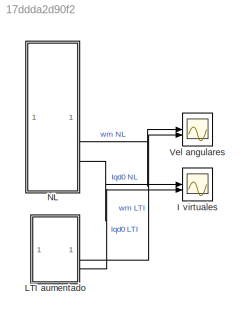
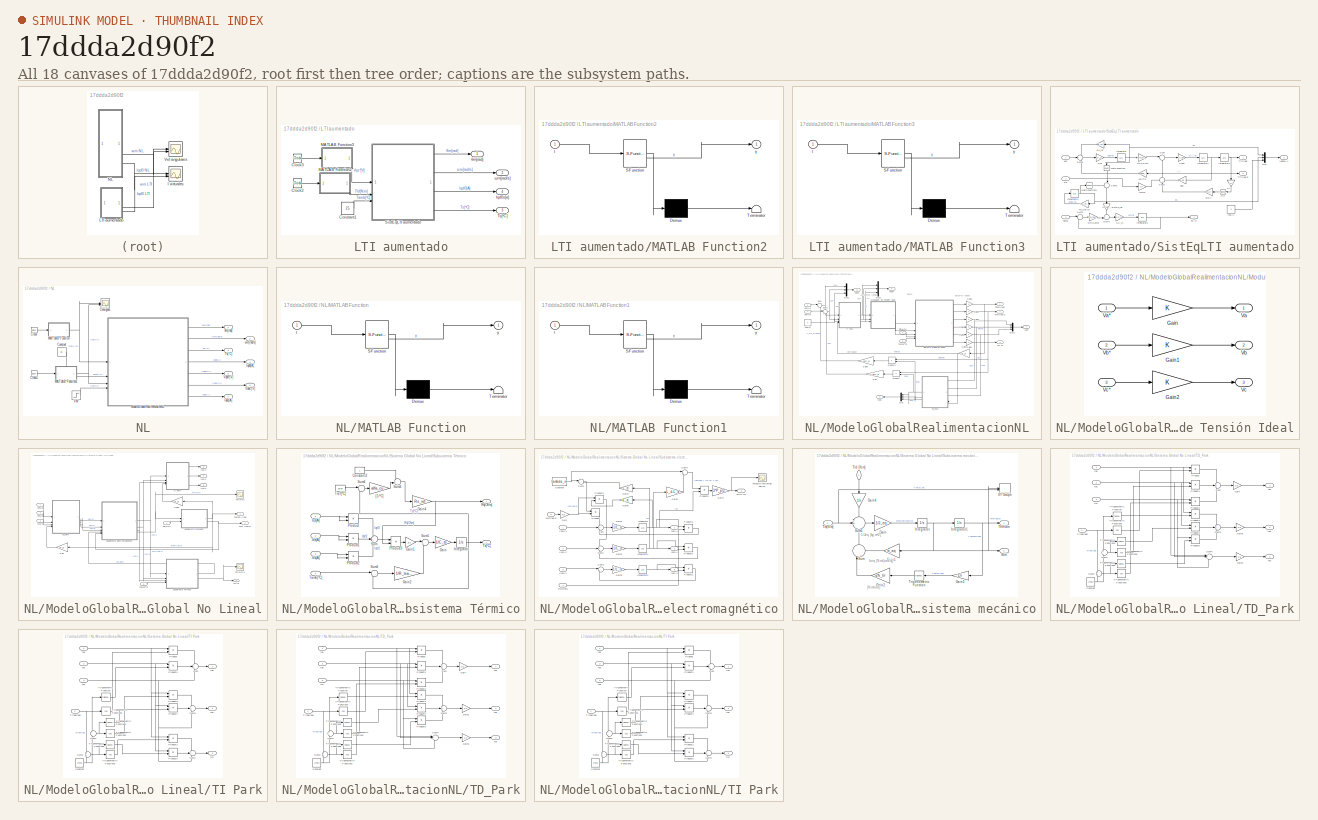
[diagram: thumbnail index - all 18 canvases of the model, root first then tree order]
MODEL slx_17ddda2d90f2
KIND model
CONFIG AbsTol = auto
CONFIG EnableMultiTasking = off
CONFIG FixedStep = auto
CONFIG MaxStep = auto
CONFIG MinStep = auto
CONFIG RelTol = 1e-3
CONFIG SampleTimeConstraint = Unconstrained
CONFIG SolverName = VariableStepAuto
CONFIG StartTime = 0.0
CONFIG StopTime = 10.0
BLOCK [Scope] I virtuales
  Floating = off
  NumInputPorts = 2
  ScopeSpecificationString = Simulink.scopes.TimeScopeBlockCfg('CurrentConfiguration', extmgr.ConfigurationSet(extmgr.Configuration('Core','General UI',true),extmgr.Configuration('Core','Source UI',true),extmgr.Configuration('Sources','WiredSimulink',true,'DataLoggingVariableName','ScopeData3'),extmgr.Configuration('Visuals','Time Domain',true,'SerializedDisplays',{struct('MinYLimReal','-11.826','MaxYLimReal','11.29262','YLab...<+2000ch>
BLOCK [SubSystem] LTI aumentado
BLOCK [Clock] LTI aumentado/Clock2
BLOCK [Clock] LTI aumentado/Clock3
BLOCK [Constant] LTI aumentado/Constant1
  Value = 25
BLOCK [Outport] LTI aumentado/Iqd0s[a]
  Port = 4
BLOCK [SubSystem] LTI aumentado/MATLAB Function2
  ErrorFcn = Stateflow.Translate.translate
  PermitHierarchicalResolution = ExplicitOnly
  SFBlockType = MATLAB Function
  TreatAsAtomicUnit = on
BLOCK [Demux] LTI aumentado/MATLAB Function2/ Demux 
  Outputs = 1
BLOCK [S-Function] LTI aumentado/MATLAB Function2/ SFunction 
  EnableBusSupport = on
  FunctionName = sf_sfun
  PortCounts = [1 2]
  SFcnIsStateOwnerBlock = off
  SFunctionDeploymentMode = off
  Tag = Stateflow S-Function 3
BLOCK [Terminator] LTI aumentado/MATLAB Function2/ Terminator 
BLOCK [Inport] LTI aumentado/MATLAB Function2/t
BLOCK [Outport] LTI aumentado/MATLAB Function2/y
BLOCK [SubSystem] LTI aumentado/MATLAB Function3
  ErrorFcn = Stateflow.Translate.translate
  PermitHierarchicalResolution = ExplicitOnly
  SFBlockType = MATLAB Function
  TreatAsAtomicUnit = on
BLOCK [Demux] LTI aumentado/MATLAB Function3/ Demux 
  Outputs = 1
BLOCK [S-Function] LTI aumentado/MATLAB Function3/ SFunction 
  EnableBusSupport = on
  FunctionName = sf_sfun
  PortCounts = [1 2]
  SFcnIsStateOwnerBlock = off
  SFunctionDeploymentMode = off
  Tag = Stateflow S-Function 4
BLOCK [Terminator] LTI aumentado/MATLAB Function3/ Terminator 
BLOCK [Inport] LTI aumentado/MATLAB Function3/t
BLOCK [Outport] LTI aumentado/MATLAB Function3/y
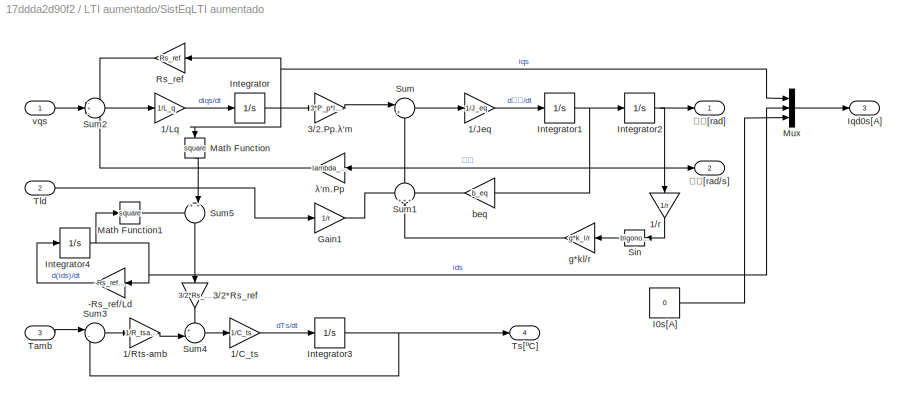
BLOCK [SubSystem] LTI aumentado/SistEqLTI aumentado
BLOCK [Gain] LTI aumentado/SistEqLTI aumentado/-Rs_ref//Ld
  Gain = -Rs_ref/L_d
BLOCK [Gain] LTI aumentado/SistEqLTI aumentado/1//C_ts
  Gain = 1/C_ts
BLOCK [Gain] LTI aumentado/SistEqLTI aumentado/1//Jeq
  Gain = 1/J_eq
BLOCK [Gain] LTI aumentado/SistEqLTI aumentado/1//Lq
  Gain = 1/L_q
BLOCK [Gain] LTI aumentado/SistEqLTI aumentado/1//Rts-amb
  Gain = 1/R_tsamb
BLOCK [Gain] LTI aumentado/SistEqLTI aumentado/1//r
  Gain = 1/r
  NameLocation = left
BLOCK [Gain] LTI aumentado/SistEqLTI aumentado/3//2*Rs_ref
  Gain = 3/2*Rs_ref
  NameLocation = right
BLOCK [Gain] LTI aumentado/SistEqLTI aumentado/3//2.Pp.λ′m
  Gain = 3*P_p*lambda_m/2
BLOCK [Gain] LTI aumentado/SistEqLTI aumentado/Gain1
  Gain = 1/r
BLOCK [Constant] LTI aumentado/SistEqLTI aumentado/I0s[A]
  Value = 0
BLOCK [Integrator] LTI aumentado/SistEqLTI aumentado/Integrator
BLOCK [Integrator] LTI aumentado/SistEqLTI aumentado/Integrator1
BLOCK [Integrator] LTI aumentado/SistEqLTI aumentado/Integrator2
BLOCK [Integrator] LTI aumentado/SistEqLTI aumentado/Integrator3
BLOCK [Integrator] LTI aumentado/SistEqLTI aumentado/Integrator4
  InitialCondition = I_d0
BLOCK [Outport] LTI aumentado/SistEqLTI aumentado/Iqd0s[A]
  Port = 3
BLOCK [Math] LTI aumentado/SistEqLTI aumentado/Math Function
  NameLocation = left
  Operator = square
BLOCK [Math] LTI aumentado/SistEqLTI aumentado/Math Function1
  Operator = square
BLOCK [Mux] LTI aumentado/SistEqLTI aumentado/Mux
  DisplayOption = bar
  Inputs = 3
BLOCK [Gain] LTI aumentado/SistEqLTI aumentado/Rs_ref
  Gain = Rs_ref
BLOCK [Trigonometry] LTI aumentado/SistEqLTI aumentado/Sin
BLOCK [Sum] LTI aumentado/SistEqLTI aumentado/Sum
  Inputs = |+-
BLOCK [Sum] LTI aumentado/SistEqLTI aumentado/Sum1
  Inputs = +++
  NameLocation = right
BLOCK [Sum] LTI aumentado/SistEqLTI aumentado/Sum2
  Inputs = -+-
BLOCK [Sum] LTI aumentado/SistEqLTI aumentado/Sum3
  Inputs = |-+
BLOCK [Sum] LTI aumentado/SistEqLTI aumentado/Sum4
  Inputs = +-|
BLOCK [Sum] LTI aumentado/SistEqLTI aumentado/Sum5
  Inputs = ++|
  NameLocation = left
BLOCK [Inport] LTI aumentado/SistEqLTI aumentado/Tamb
  Port = 3
BLOCK [Inport] LTI aumentado/SistEqLTI aumentado/Tld
  Port = 2
BLOCK [Outport] LTI aumentado/SistEqLTI aumentado/Ts[ºC]
  Port = 4
BLOCK [Gain] LTI aumentado/SistEqLTI aumentado/beq
  Gain = b_eq
BLOCK [Gain] LTI aumentado/SistEqLTI aumentado/g*kl//r
  Gain = g*k_l/r
BLOCK [Inport] LTI aumentado/SistEqLTI aumentado/vqs
BLOCK [Gain] LTI aumentado/SistEqLTI aumentado/λ′m.Pp
  Gain = lambda_m*P_p
BLOCK [Outport] LTI aumentado/SistEqLTI aumentado/𝜃𝑚[rad]
BLOCK [Outport] LTI aumentado/SistEqLTI aumentado/𝜔𝑚[rad//s]
  Port = 2
BLOCK [Outport] LTI aumentado/Ts[ºC]
  Port = 3
BLOCK [Outport] LTI aumentado/θm[rad]
BLOCK [Outport] LTI aumentado/ωm[rad//s]
  Port = 2
BLOCK [SubSystem] NL
BLOCK [Clock] NL/Clock
BLOCK [Clock] NL/Clock1
BLOCK [Scope] NL/Consignas
  Floating = off
  NumInputPorts = 2
  ScopeSpecificationString = Simulink.scopes.TimeScopeBlockCfg('CurrentConfiguration', extmgr.ConfigurationSet(extmgr.Configuration('Core','General UI',true),extmgr.Configuration('Core','Source UI',true),extmgr.Configuration('Sources','WiredSimulink',true,'DataLoggingVariableName','ScopeData1'),extmgr.Configuration('Visuals','Time Domain',true,'SerializedDisplays',{struct('MinYLimReal','-9.5145','MaxYLimReal','22.8305','YLabe...<+1406ch>
BLOCK [Constant] NL/Constant
  Value = 25
BLOCK [Outport] NL/Iabc[A]
  Port = 7
BLOCK [Outport] NL/Iqd0[A]
  Port = 4
BLOCK [SubSystem] NL/MATLAB Function
  ErrorFcn = Stateflow.Translate.translate
  PermitHierarchicalResolution = ExplicitOnly
  SFBlockType = MATLAB Function
  TreatAsAtomicUnit = on
BLOCK [Demux] NL/MATLAB Function/ Demux 
  Outputs = 1
BLOCK [S-Function] NL/MATLAB Function/ SFunction 
  EnableBusSupport = on
  FunctionName = sf_sfun
  PortCounts = [1 2]
  SFcnIsStateOwnerBlock = off
  SFunctionDeploymentMode = off
  Tag = Stateflow S-Function 2
BLOCK [Terminator] NL/MATLAB Function/ Terminator 
BLOCK [Inport] NL/MATLAB Function/t
BLOCK [Outport] NL/MATLAB Function/y
BLOCK [SubSystem] NL/MATLAB Function1
  ErrorFcn = Stateflow.Translate.translate
  PermitHierarchicalResolution = ExplicitOnly
  SFBlockType = MATLAB Function
  TreatAsAtomicUnit = on
BLOCK [Demux] NL/MATLAB Function1/ Demux 
  Outputs = 1
BLOCK [S-Function] NL/MATLAB Function1/ SFunction 
  EnableBusSupport = on
  FunctionName = sf_sfun
  PortCounts = [1 2]
  SFcnIsStateOwnerBlock = off
  SFunctionDeploymentMode = off
  Tag = Stateflow S-Function 1
BLOCK [Terminator] NL/MATLAB Function1/ Terminator 
BLOCK [Inport] NL/MATLAB Function1/t
BLOCK [Outport] NL/MATLAB Function1/y
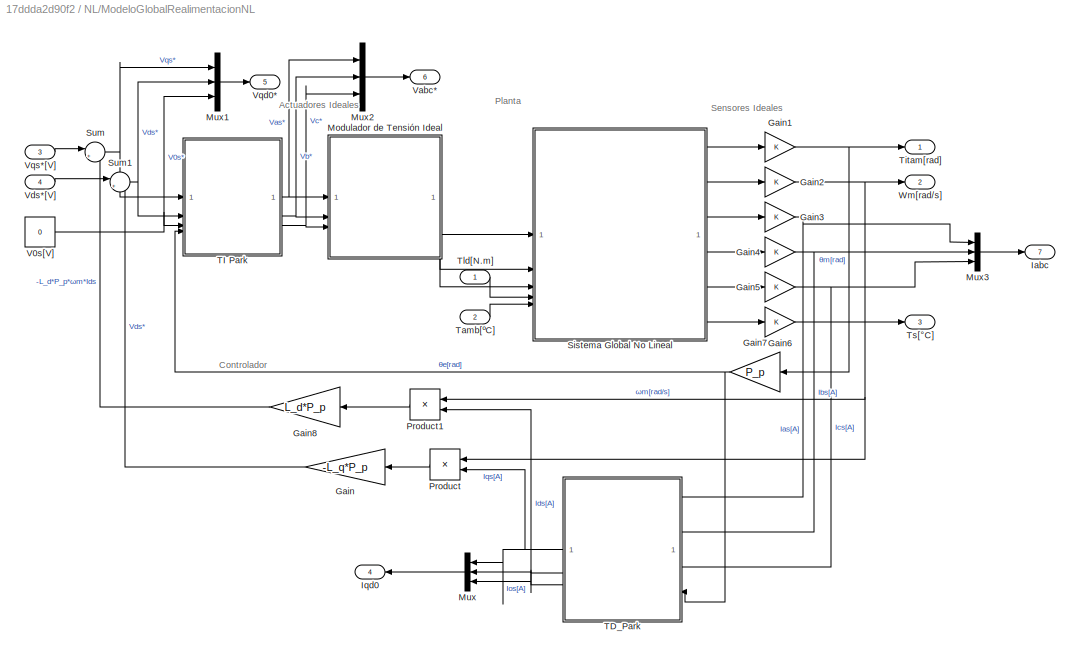
BLOCK [SubSystem] NL/ModeloGlobalRealimentacionNL
BLOCK [Gain] NL/ModeloGlobalRealimentacionNL/Gain
  Gain = -L_q*P_p
BLOCK [Gain] NL/ModeloGlobalRealimentacionNL/Gain1
BLOCK [Gain] NL/ModeloGlobalRealimentacionNL/Gain2
BLOCK [Gain] NL/ModeloGlobalRealimentacionNL/Gain3
BLOCK [Gain] NL/ModeloGlobalRealimentacionNL/Gain4
BLOCK [Gain] NL/ModeloGlobalRealimentacionNL/Gain5
BLOCK [Gain] NL/ModeloGlobalRealimentacionNL/Gain6
BLOCK [Gain] NL/ModeloGlobalRealimentacionNL/Gain7
  Gain = P_p
BLOCK [Gain] NL/ModeloGlobalRealimentacionNL/Gain8
  Gain = L_d*P_p
BLOCK [Outport] NL/ModeloGlobalRealimentacionNL/Iabc
  Port = 7
BLOCK [Outport] NL/ModeloGlobalRealimentacionNL/Iqd0
  Port = 4
BLOCK [SubSystem] NL/ModeloGlobalRealimentacionNL/Modulador de Tensión Ideal
BLOCK [Gain] NL/ModeloGlobalRealimentacionNL/Modulador de Tensión Ideal/Gain
BLOCK [Gain] NL/ModeloGlobalRealimentacionNL/Modulador de Tensión Ideal/Gain1
BLOCK [Gain] NL/ModeloGlobalRealimentacionNL/Modulador de Tensión Ideal/Gain2
BLOCK [Outport] NL/ModeloGlobalRealimentacionNL/Modulador de Tensión Ideal/Va
BLOCK [Inport] NL/ModeloGlobalRealimentacionNL/Modulador de Tensión Ideal/Va*
BLOCK [Outport] NL/ModeloGlobalRealimentacionNL/Modulador de Tensión Ideal/Vb
  Port = 2
BLOCK [Inport] NL/ModeloGlobalRealimentacionNL/Modulador de Tensión Ideal/Vb* 
  Port = 2
BLOCK [Outport] NL/ModeloGlobalRealimentacionNL/Modulador de Tensión Ideal/Vc
  Port = 3
BLOCK [Inport] NL/ModeloGlobalRealimentacionNL/Modulador de Tensión Ideal/Vc*
  Port = 3
BLOCK [Mux] NL/ModeloGlobalRealimentacionNL/Mux
  DisplayOption = bar
  Inputs = 3
BLOCK [Mux] NL/ModeloGlobalRealimentacionNL/Mux1
  DisplayOption = bar
  Inputs = 3
BLOCK [Mux] NL/ModeloGlobalRealimentacionNL/Mux2
  DisplayOption = bar
  Inputs = 3
BLOCK [Mux] NL/ModeloGlobalRealimentacionNL/Mux3
  DisplayOption = bar
  Inputs = 3
BLOCK [Product] NL/ModeloGlobalRealimentacionNL/Product
BLOCK [Product] NL/ModeloGlobalRealimentacionNL/Product1
BLOCK [SubSystem] NL/ModeloGlobalRealimentacionNL/Sistema Global No Lineal
BLOCK [Gain] NL/ModeloGlobalRealimentacionNL/Sistema Global No Lineal/Gain
  Gain = P_p
BLOCK [Gain] NL/ModeloGlobalRealimentacionNL/Sistema Global No Lineal/Gain2
  Gain = P_p
BLOCK [Outport] NL/ModeloGlobalRealimentacionNL/Sistema Global No Lineal/Ias[A]
  Port = 3
BLOCK [Outport] NL/ModeloGlobalRealimentacionNL/Sistema Global No Lineal/Ibs[A]
  Port = 4
BLOCK [Outport] NL/ModeloGlobalRealimentacionNL/Sistema Global No Lineal/Ics[A]
  Port = 5
BLOCK [SubSystem] NL/ModeloGlobalRealimentacionNL/Sistema Global No Lineal/Subsistema Térmico
BLOCK [Constant] NL/ModeloGlobalRealimentacionNL/Sistema Global No Lineal/Subsistema Térmico/Constant2
BLOCK [Gain] NL/ModeloGlobalRealimentacionNL/Sistema Global No Lineal/Subsistema Térmico/Gain
  Gain = 1/C_ts
BLOCK [Gain] NL/ModeloGlobalRealimentacionNL/Sistema Global No Lineal/Subsistema Térmico/Gain1
  Gain = 3/2
BLOCK [Gain] NL/ModeloGlobalRealimentacionNL/Sistema Global No Lineal/Subsistema Térmico/Gain2
  Gain = 1/R_tsamb
BLOCK [Gain] NL/ModeloGlobalRealimentacionNL/Sistema Global No Lineal/Subsistema Térmico/Gain4
  Gain = Rs_ref
BLOCK [Inport] NL/ModeloGlobalRealimentacionNL/Sistema Global No Lineal/Subsistema Térmico/Ids[A]
  Port = 2
BLOCK [Integrator] NL/ModeloGlobalRealimentacionNL/Sistema Global No Lineal/Subsistema Térmico/Integrator
BLOCK [Inport] NL/ModeloGlobalRealimentacionNL/Sistema Global No Lineal/Subsistema Térmico/Ios[A]
  Port = 3
BLOCK [Inport] NL/ModeloGlobalRealimentacionNL/Sistema Global No Lineal/Subsistema Térmico/Iqs[A]
BLOCK [Product] NL/ModeloGlobalRealimentacionNL/Sistema Global No Lineal/Subsistema Térmico/Product
BLOCK [Product] NL/ModeloGlobalRealimentacionNL/Sistema Global No Lineal/Subsistema Térmico/Product1
BLOCK [Product] NL/ModeloGlobalRealimentacionNL/Sistema Global No Lineal/Subsistema Térmico/Product2
BLOCK [Product] NL/ModeloGlobalRealimentacionNL/Sistema Global No Lineal/Subsistema Térmico/Product3
BLOCK [Outport] NL/ModeloGlobalRealimentacionNL/Sistema Global No Lineal/Subsistema Térmico/Rs[Ohm]
BLOCK [Sum] NL/ModeloGlobalRealimentacionNL/Sistema Global No Lineal/Subsistema Térmico/Sum
  Inputs = +++
BLOCK [Sum] NL/ModeloGlobalRealimentacionNL/Sistema Global No Lineal/Subsistema Térmico/Sum1
  Inputs = |+-
BLOCK [Sum] NL/ModeloGlobalRealimentacionNL/Sistema Global No Lineal/Subsistema Térmico/Sum2
  Inputs = |-+
BLOCK [Sum] NL/ModeloGlobalRealimentacionNL/Sistema Global No Lineal/Subsistema Térmico/Sum3
  Inputs = ++|
BLOCK [Sum] NL/ModeloGlobalRealimentacionNL/Sistema Global No Lineal/Subsistema Térmico/Sum4
  Inputs = |-+
BLOCK [Inport] NL/ModeloGlobalRealimentacionNL/Sistema Global No Lineal/Subsistema Térmico/Tamb[ºC]
  Port = 4
BLOCK [Constant] NL/ModeloGlobalRealimentacionNL/Sistema Global No Lineal/Subsistema Térmico/Tref[ºC]
  Value = Tsref
BLOCK [Outport] NL/ModeloGlobalRealimentacionNL/Sistema Global No Lineal/Subsistema Térmico/Ts[ºC]
  Port = 2
BLOCK [Gain] NL/ModeloGlobalRealimentacionNL/Sistema Global No Lineal/Subsistema Térmico/[1//ºC]
  Gain = alfa_cu
BLOCK [SubSystem] NL/ModeloGlobalRealimentacionNL/Sistema Global No Lineal/Subsistema electromagnético
BLOCK [Constant] NL/ModeloGlobalRealimentacionNL/Sistema Global No Lineal/Subsistema electromagnético/Constant
  Value = lambda_m
BLOCK [Gain] NL/ModeloGlobalRealimentacionNL/Sistema Global No Lineal/Subsistema electromagnético/Gain
  Gain = P_p
BLOCK [Gain] NL/ModeloGlobalRealimentacionNL/Sistema Global No Lineal/Subsistema electromagnético/Gain1
  Gain = 1/L_q
BLOCK [Gain] NL/ModeloGlobalRealimentacionNL/Sistema Global No Lineal/Subsistema electromagnético/Gain2
  Gain = 1/L_d
BLOCK [Gain] NL/ModeloGlobalRealimentacionNL/Sistema Global No Lineal/Subsistema electromagnético/Gain3
  Gain = 1/L_ls
BLOCK [Gain] NL/ModeloGlobalRealimentacionNL/Sistema Global No Lineal/Subsistema electromagnético/Gain4
  Gain = L_d
BLOCK [Gain] NL/ModeloGlobalRealimentacionNL/Sistema Global No Lineal/Subsistema electromagnético/Gain5
  Gain = L_q
BLOCK [Gain] NL/ModeloGlobalRealimentacionNL/Sistema Global No Lineal/Subsistema electromagnético/Gain6
  Gain = L_d-L_q
BLOCK [Gain] NL/ModeloGlobalRealimentacionNL/Sistema Global No Lineal/Subsistema electromagnético/Gain7
  Gain = 3*P_p/2
BLOCK [Outport] NL/ModeloGlobalRealimentacionNL/Sistema Global No Lineal/Subsistema electromagnético/Ids[A]
  Port = 2
BLOCK [Integrator] NL/ModeloGlobalRealimentacionNL/Sistema Global No Lineal/Subsistema electromagnético/Integrator
BLOCK [Integrator] NL/ModeloGlobalRealimentacionNL/Sistema Global No Lineal/Subsistema electromagnético/Integrator1
  InitialCondition = -0.5
BLOCK [Integrator] NL/ModeloGlobalRealimentacionNL/Sistema Global No Lineal/Subsistema electromagnético/Integrator2
BLOCK [Outport] NL/ModeloGlobalRealimentacionNL/Sistema Global No Lineal/Subsistema electromagnético/Ios[A]
  Port = 3
BLOCK [Outport] NL/ModeloGlobalRealimentacionNL/Sistema Global No Lineal/Subsistema electromagnético/Iqs[A]
BLOCK [Product] NL/ModeloGlobalRealimentacionNL/Sistema Global No Lineal/Subsistema electromagnético/Product
BLOCK [Product] NL/ModeloGlobalRealimentacionNL/Sistema Global No Lineal/Subsistema electromagnético/Product1
BLOCK [Product] NL/ModeloGlobalRealimentacionNL/Sistema Global No Lineal/Subsistema electromagnético/Product2
BLOCK [Product] NL/ModeloGlobalRealimentacionNL/Sistema Global No Lineal/Subsistema electromagnético/Product3
BLOCK [Product] NL/ModeloGlobalRealimentacionNL/Sistema Global No Lineal/Subsistema electromagnético/Product4
BLOCK [Product] NL/ModeloGlobalRealimentacionNL/Sistema Global No Lineal/Subsistema electromagnético/Product5
BLOCK [Inport] NL/ModeloGlobalRealimentacionNL/Sistema Global No Lineal/Subsistema electromagnético/Rs[Ohm]
  Port = 4
BLOCK [Sum] NL/ModeloGlobalRealimentacionNL/Sistema Global No Lineal/Subsistema electromagnético/Sum
  Inputs = -+-
BLOCK [Sum] NL/ModeloGlobalRealimentacionNL/Sistema Global No Lineal/Subsistema electromagnético/Sum1
  Inputs = ++-
BLOCK [Sum] NL/ModeloGlobalRealimentacionNL/Sistema Global No Lineal/Subsistema electromagnético/Sum2
  Inputs = |++
BLOCK [Sum] NL/ModeloGlobalRealimentacionNL/Sistema Global No Lineal/Subsistema electromagnético/Sum3
  Inputs = |+-
BLOCK [Sum] NL/ModeloGlobalRealimentacionNL/Sistema Global No Lineal/Subsistema electromagnético/Sum4
  Inputs = |++
BLOCK [Outport] NL/ModeloGlobalRealimentacionNL/Sistema Global No Lineal/Subsistema electromagnético/Tm[N.m]
  Port = 4
BLOCK [Scope] NL/ModeloGlobalRealimentacionNL/Sistema Global No Lineal/Subsistema electromagnético/Torque Electromagnético
  Floating = off
  NumInputPorts = 1
  ScopeSpecificationString = Simulink.scopes.TimeScopeBlockCfg('CurrentConfiguration', extmgr.ConfigurationSet(extmgr.Configuration('Core','General UI',true),extmgr.Configuration('Core','Source UI',true),extmgr.Configuration('Sources','WiredSimulink',true,'DataLoggingVariableName','Tm','DataLogging',true,'DataLoggingSaveFormat','Array'),extmgr.Configuration('Visuals','Time Domain',true,'SerializedDisplays',{struct('MinYLimRea...<+1405ch>
BLOCK [Inport] NL/ModeloGlobalRealimentacionNL/Sistema Global No Lineal/Subsistema electromagnético/Vds[V]
  Port = 2
BLOCK [Inport] NL/ModeloGlobalRealimentacionNL/Sistema Global No Lineal/Subsistema electromagnético/Vos[V]
  Port = 3
BLOCK [Inport] NL/ModeloGlobalRealimentacionNL/Sistema Global No Lineal/Subsistema electromagnético/Vqs[V]
BLOCK [Inport] NL/ModeloGlobalRealimentacionNL/Sistema Global No Lineal/Subsistema electromagnético/Wm[rad//s]
  Port = 5
BLOCK [SubSystem] NL/ModeloGlobalRealimentacionNL/Sistema Global No Lineal/Subsistema mecánico
BLOCK [Gain] NL/ModeloGlobalRealimentacionNL/Sistema Global No Lineal/Subsistema mecánico/Gain
  Gain = 1/J_eq
BLOCK [Gain] NL/ModeloGlobalRealimentacionNL/Sistema Global No Lineal/Subsistema mecánico/Gain1
  Gain = b_eq
BLOCK [Gain] NL/ModeloGlobalRealimentacionNL/Sistema Global No Lineal/Subsistema mecánico/Gain2
  Gain = g*k_l/r
BLOCK [Gain] NL/ModeloGlobalRealimentacionNL/Sistema Global No Lineal/Subsistema mecánico/Gain3
  Gain = 1/r
BLOCK [Gain] NL/ModeloGlobalRealimentacionNL/Sistema Global No Lineal/Subsistema mecánico/Gain4
  Gain = 1/r
  NameLocation = left
BLOCK [Integrator] NL/ModeloGlobalRealimentacionNL/Sistema Global No Lineal/Subsistema mecánico/Integrator
BLOCK [Integrator] NL/ModeloGlobalRealimentacionNL/Sistema Global No Lineal/Subsistema mecánico/Integrator1
BLOCK [Sum] NL/ModeloGlobalRealimentacionNL/Sistema Global No Lineal/Subsistema mecánico/Sum
  Inputs = |++
  NameLocation = left
BLOCK [Sum] NL/ModeloGlobalRealimentacionNL/Sistema Global No Lineal/Subsistema mecánico/Sum1
  Inputs = -+-
BLOCK [Outport] NL/ModeloGlobalRealimentacionNL/Sistema Global No Lineal/Subsistema mecánico/Thetam
BLOCK [Inport] NL/ModeloGlobalRealimentacionNL/Sistema Global No Lineal/Subsistema mecánico/Tld [N.m]
  NameLocation = left
  Port = 2
BLOCK [Inport] NL/ModeloGlobalRealimentacionNL/Sistema Global No Lineal/Subsistema mecánico/Tm[N.m]
BLOCK [Trigonometry] NL/ModeloGlobalRealimentacionNL/Sistema Global No Lineal/Subsistema mecánico/Trigonometric Function
BLOCK [Outport] NL/ModeloGlobalRealimentacionNL/Sistema Global No Lineal/Subsistema mecánico/Wm
  Port = 2
BLOCK [Record] NL/ModeloGlobalRealimentacionNL/Sistema Global No Lineal/Subsistema mecánico/XY Graph
  CompatibilityTag = XY
  FileSettingsInternal = {"entries":[{"content":{"excelSettings":{"content":{},"type":"Streamout.ExcelSettings"}},"type":"Streamout.FileSettingStorage","uuid":""}],"packageUris":["http:\/\/schema.mathworks.com\/mf0\/streamout_blocks\/R2020a"],"version":"1.0"}
  Layout = [1 1]
  SignalsInternal = {"entries":[{"content":{"signals":[{"content":{"blockPath":[],"dimensions":[1],"domain":"","lineColor":"#ff6929","port":1,"sid":[""],"signalID":67,"signalName":"Wm[rad\/s]"},"type":"RecordBlkView.Signal","uuid":""},{"content":{"blockPath":[],"dimensions":[1],"domain":"","lineColor":"#b746ff","port":2,"sid":[""],"signalID":71,"signalName":"Tm[N.m]"},"type":"RecordBlkView.Signal","uuid":""}]},"type"...<+137ch>
  VisualizationBindings = {"xyplotplugin":{"info":[{"series":[],"subplotID":1}]}}
BLOCK [SubSystem] NL/ModeloGlobalRealimentacionNL/Sistema Global No Lineal/TD_Park
BLOCK [Constant] NL/ModeloGlobalRealimentacionNL/Sistema Global No Lineal/TD_Park/Constant
  Value = 2*pi/3
BLOCK [Gain] NL/ModeloGlobalRealimentacionNL/Sistema Global No Lineal/TD_Park/Gain
  Gain = 2/3
BLOCK [Gain] NL/ModeloGlobalRealimentacionNL/Sistema Global No Lineal/TD_Park/Gain1
  Gain = 2/3
BLOCK [Gain] NL/ModeloGlobalRealimentacionNL/Sistema Global No Lineal/TD_Park/Gain2
  Gain = 1/3
BLOCK [Product] NL/ModeloGlobalRealimentacionNL/Sistema Global No Lineal/TD_Park/Product
BLOCK [Product] NL/ModeloGlobalRealimentacionNL/Sistema Global No Lineal/TD_Park/Product1
BLOCK [Product] NL/ModeloGlobalRealimentacionNL/Sistema Global No Lineal/TD_Park/Product2
BLOCK [Product] NL/ModeloGlobalRealimentacionNL/Sistema Global No Lineal/TD_Park/Product3
BLOCK [Product] NL/ModeloGlobalRealimentacionNL/Sistema Global No Lineal/TD_Park/Product4
BLOCK [Product] NL/ModeloGlobalRealimentacionNL/Sistema Global No Lineal/TD_Park/Product5
BLOCK [Sum] NL/ModeloGlobalRealimentacionNL/Sistema Global No Lineal/TD_Park/Sum
  Inputs = +++
BLOCK [Sum] NL/ModeloGlobalRealimentacionNL/Sistema Global No Lineal/TD_Park/Sum1
  Inputs = +-
BLOCK [Sum] NL/ModeloGlobalRealimentacionNL/Sistema Global No Lineal/TD_Park/Sum2
BLOCK [Sum] NL/ModeloGlobalRealimentacionNL/Sistema Global No Lineal/TD_Park/Sum3
  Inputs = +++
BLOCK [Sum] NL/ModeloGlobalRealimentacionNL/Sistema Global No Lineal/TD_Park/Sum4
  Inputs = +++
BLOCK [Inport] NL/ModeloGlobalRealimentacionNL/Sistema Global No Lineal/TD_Park/Titae[rad]
  Port = 4
BLOCK [Trigonometry] NL/ModeloGlobalRealimentacionNL/Sistema Global No Lineal/TD_Park/Trigonometric Function
BLOCK [Trigonometry] NL/ModeloGlobalRealimentacionNL/Sistema Global No Lineal/TD_Park/Trigonometric Function1
  Operator = cos
BLOCK [Trigonometry] NL/ModeloGlobalRealimentacionNL/Sistema Global No Lineal/TD_Park/Trigonometric Function2
  Operator = cos
BLOCK [Trigonometry] NL/ModeloGlobalRealimentacionNL/Sistema Global No Lineal/TD_Park/Trigonometric Function3
  Operator = cos
BLOCK [Trigonometry] NL/ModeloGlobalRealimentacionNL/Sistema Global No Lineal/TD_Park/Trigonometric Function4
BLOCK [Trigonometry] NL/ModeloGlobalRealimentacionNL/Sistema Global No Lineal/TD_Park/Trigonometric Function5
BLOCK [Outport] NL/ModeloGlobalRealimentacionNL/Sistema Global No Lineal/TD_Park/f0s
  Port = 3
BLOCK [Inport] NL/ModeloGlobalRealimentacionNL/Sistema Global No Lineal/TD_Park/fas
BLOCK [Inport] NL/ModeloGlobalRealimentacionNL/Sistema Global No Lineal/TD_Park/fbs
  Port = 2
BLOCK [Inport] NL/ModeloGlobalRealimentacionNL/Sistema Global No Lineal/TD_Park/fcs
  Port = 3
BLOCK [Outport] NL/ModeloGlobalRealimentacionNL/Sistema Global No Lineal/TD_Park/fds
  Port = 2
BLOCK [Outport] NL/ModeloGlobalRealimentacionNL/Sistema Global No Lineal/TD_Park/fqs
BLOCK [SubSystem] NL/ModeloGlobalRealimentacionNL/Sistema Global No Lineal/TI Park
BLOCK [Constant] NL/ModeloGlobalRealimentacionNL/Sistema Global No Lineal/TI Park/Constant
  Value = 2*pi/3
BLOCK [Product] NL/ModeloGlobalRealimentacionNL/Sistema Global No Lineal/TI Park/Product
BLOCK [Product] NL/ModeloGlobalRealimentacionNL/Sistema Global No Lineal/TI Park/Product1
BLOCK [Product] NL/ModeloGlobalRealimentacionNL/Sistema Global No Lineal/TI Park/Product2
BLOCK [Product] NL/ModeloGlobalRealimentacionNL/Sistema Global No Lineal/TI Park/Product3
BLOCK [Product] NL/ModeloGlobalRealimentacionNL/Sistema Global No Lineal/TI Park/Product4
BLOCK [Product] NL/ModeloGlobalRealimentacionNL/Sistema Global No Lineal/TI Park/Product5
BLOCK [Sum] NL/ModeloGlobalRealimentacionNL/Sistema Global No Lineal/TI Park/Sum
  Inputs = +++
BLOCK [Sum] NL/ModeloGlobalRealimentacionNL/Sistema Global No Lineal/TI Park/Sum1
  Inputs = +-
BLOCK [Sum] NL/ModeloGlobalRealimentacionNL/Sistema Global No Lineal/TI Park/Sum2
BLOCK [Sum] NL/ModeloGlobalRealimentacionNL/Sistema Global No Lineal/TI Park/Sum3
  Inputs = +++
BLOCK [Sum] NL/ModeloGlobalRealimentacionNL/Sistema Global No Lineal/TI Park/Sum4
  Inputs = +++
BLOCK [Inport] NL/ModeloGlobalRealimentacionNL/Sistema Global No Lineal/TI Park/Titae[rad]
  Port = 4
BLOCK [Trigonometry] NL/ModeloGlobalRealimentacionNL/Sistema Global No Lineal/TI Park/Trigonometric Function
BLOCK [Trigonometry] NL/ModeloGlobalRealimentacionNL/Sistema Global No Lineal/TI Park/Trigonometric Function1
  Operator = cos
BLOCK [Trigonometry] NL/ModeloGlobalRealimentacionNL/Sistema Global No Lineal/TI Park/Trigonometric Function2
  Operator = cos
BLOCK [Trigonometry] NL/ModeloGlobalRealimentacionNL/Sistema Global No Lineal/TI Park/Trigonometric Function3
  Operator = cos
BLOCK [Trigonometry] NL/ModeloGlobalRealimentacionNL/Sistema Global No Lineal/TI Park/Trigonometric Function4
BLOCK [Trigonometry] NL/ModeloGlobalRealimentacionNL/Sistema Global No Lineal/TI Park/Trigonometric Function5
BLOCK [Inport] NL/ModeloGlobalRealimentacionNL/Sistema Global No Lineal/TI Park/f0s
  Port = 3
BLOCK [Outport] NL/ModeloGlobalRealimentacionNL/Sistema Global No Lineal/TI Park/fas
BLOCK [Outport] NL/ModeloGlobalRealimentacionNL/Sistema Global No Lineal/TI Park/fbs
  Port = 2
BLOCK [Outport] NL/ModeloGlobalRealimentacionNL/Sistema Global No Lineal/TI Park/fcs
  Port = 3
BLOCK [Inport] NL/ModeloGlobalRealimentacionNL/Sistema Global No Lineal/TI Park/fds
  Port = 2
BLOCK [Inport] NL/ModeloGlobalRealimentacionNL/Sistema Global No Lineal/TI Park/fqs
BLOCK [Inport] NL/ModeloGlobalRealimentacionNL/Sistema Global No Lineal/Tamb[ºC]
  Port = 5
BLOCK [Outport] NL/ModeloGlobalRealimentacionNL/Sistema Global No Lineal/Thetam [rad]
BLOCK [Inport] NL/ModeloGlobalRealimentacionNL/Sistema Global No Lineal/Tld[N.m]
  Port = 4
BLOCK [Scope] NL/ModeloGlobalRealimentacionNL/Sistema Global No Lineal/Tm[N.m]
  Floating = off
  NumInputPorts = 1
  ScopeSpecificationString = Simulink.scopes.TimeScopeBlockCfg('CurrentConfiguration', extmgr.ConfigurationSet(extmgr.Configuration('Core','General UI',true),extmgr.Configuration('Core','Source UI',true),extmgr.Configuration('Sources','WiredSimulink',true),extmgr.Configuration('Visuals','Time Domain',true,'SerializedDisplays',{struct('MinYLimReal','-1.0134','MaxYLimReal','0.98908','YLabelReal','','MinYLimMag','0.00000','MaxYL...<+1352ch>
BLOCK [Scope] NL/ModeloGlobalRealimentacionNL/Sistema Global No Lineal/Tm[N.m]1
  Floating = off
  NumInputPorts = 1
  ScopeSpecificationString = Simulink.scopes.TimeScopeBlockCfg('CurrentConfiguration', extmgr.ConfigurationSet(extmgr.Configuration('Core','General UI',true),extmgr.Configuration('Core','Source UI',true),extmgr.Configuration('Sources','WiredSimulink',true,'DataLoggingVariableName','ScopeData1'),extmgr.Configuration('Visuals','Time Domain',true,'SerializedDisplays',{struct('MinYLimReal','-0.6311','MaxYLimReal','5.67993','YLabe...<+1415ch>
BLOCK [Outport] NL/ModeloGlobalRealimentacionNL/Sistema Global No Lineal/Ts[ºC]
  Port = 6
BLOCK [Inport] NL/ModeloGlobalRealimentacionNL/Sistema Global No Lineal/Vas[V]
BLOCK [Inport] NL/ModeloGlobalRealimentacionNL/Sistema Global No Lineal/Vbs[V]
  Port = 2
BLOCK [Inport] NL/ModeloGlobalRealimentacionNL/Sistema Global No Lineal/Vcs[V]
  Port = 3
BLOCK [Outport] NL/ModeloGlobalRealimentacionNL/Sistema Global No Lineal/Wm [rad//s]
  Port = 2
BLOCK [Sum] NL/ModeloGlobalRealimentacionNL/Sum
  Inputs = |++
BLOCK [Sum] NL/ModeloGlobalRealimentacionNL/Sum1
  Inputs = |++
BLOCK [SubSystem] NL/ModeloGlobalRealimentacionNL/TD_Park
BLOCK [Constant] NL/ModeloGlobalRealimentacionNL/TD_Park/Constant
  Value = 2*pi/3
BLOCK [Gain] NL/ModeloGlobalRealimentacionNL/TD_Park/Gain
  Gain = 2/3
BLOCK [Gain] NL/ModeloGlobalRealimentacionNL/TD_Park/Gain1
  Gain = 2/3
BLOCK [Gain] NL/ModeloGlobalRealimentacionNL/TD_Park/Gain2
  Gain = 1/3
BLOCK [Product] NL/ModeloGlobalRealimentacionNL/TD_Park/Product
BLOCK [Product] NL/ModeloGlobalRealimentacionNL/TD_Park/Product1
BLOCK [Product] NL/ModeloGlobalRealimentacionNL/TD_Park/Product2
BLOCK [Product] NL/ModeloGlobalRealimentacionNL/TD_Park/Product3
BLOCK [Product] NL/ModeloGlobalRealimentacionNL/TD_Park/Product4
BLOCK [Product] NL/ModeloGlobalRealimentacionNL/TD_Park/Product5
BLOCK [Sum] NL/ModeloGlobalRealimentacionNL/TD_Park/Sum
  Inputs = +++
BLOCK [Sum] NL/ModeloGlobalRealimentacionNL/TD_Park/Sum1
  Inputs = +-
BLOCK [Sum] NL/ModeloGlobalRealimentacionNL/TD_Park/Sum2
BLOCK [Sum] NL/ModeloGlobalRealimentacionNL/TD_Park/Sum3
  Inputs = +++
BLOCK [Sum] NL/ModeloGlobalRealimentacionNL/TD_Park/Sum4
  Inputs = +++
BLOCK [Inport] NL/ModeloGlobalRealimentacionNL/TD_Park/Titae[rad]
  Port = 4
BLOCK [Trigonometry] NL/ModeloGlobalRealimentacionNL/TD_Park/Trigonometric Function
BLOCK [Trigonometry] NL/ModeloGlobalRealimentacionNL/TD_Park/Trigonometric Function1
  Operator = cos
BLOCK [Trigonometry] NL/ModeloGlobalRealimentacionNL/TD_Park/Trigonometric Function2
  Operator = cos
BLOCK [Trigonometry] NL/ModeloGlobalRealimentacionNL/TD_Park/Trigonometric Function3
  Operator = cos
BLOCK [Trigonometry] NL/ModeloGlobalRealimentacionNL/TD_Park/Trigonometric Function4
BLOCK [Trigonometry] NL/ModeloGlobalRealimentacionNL/TD_Park/Trigonometric Function5
BLOCK [Outport] NL/ModeloGlobalRealimentacionNL/TD_Park/f0s
  Port = 3
BLOCK [Inport] NL/ModeloGlobalRealimentacionNL/TD_Park/fas
BLOCK [Inport] NL/ModeloGlobalRealimentacionNL/TD_Park/fbs
  Port = 2
BLOCK [Inport] NL/ModeloGlobalRealimentacionNL/TD_Park/fcs
  Port = 3
BLOCK [Outport] NL/ModeloGlobalRealimentacionNL/TD_Park/fds
  Port = 2
BLOCK [Outport] NL/ModeloGlobalRealimentacionNL/TD_Park/fqs
BLOCK [SubSystem] NL/ModeloGlobalRealimentacionNL/TI Park
BLOCK [Constant] NL/ModeloGlobalRealimentacionNL/TI Park/Constant
  Value = 2*pi/3
BLOCK [Product] NL/ModeloGlobalRealimentacionNL/TI Park/Product
BLOCK [Product] NL/ModeloGlobalRealimentacionNL/TI Park/Product1
BLOCK [Product] NL/ModeloGlobalRealimentacionNL/TI Park/Product2
BLOCK [Product] NL/ModeloGlobalRealimentacionNL/TI Park/Product3
BLOCK [Product] NL/ModeloGlobalRealimentacionNL/TI Park/Product4
BLOCK [Product] NL/ModeloGlobalRealimentacionNL/TI Park/Product5
BLOCK [Sum] NL/ModeloGlobalRealimentacionNL/TI Park/Sum
  Inputs = +++
BLOCK [Sum] NL/ModeloGlobalRealimentacionNL/TI Park/Sum1
  Inputs = +-
BLOCK [Sum] NL/ModeloGlobalRealimentacionNL/TI Park/Sum2
BLOCK [Sum] NL/ModeloGlobalRealimentacionNL/TI Park/Sum3
  Inputs = +++
BLOCK [Sum] NL/ModeloGlobalRealimentacionNL/TI Park/Sum4
  Inputs = +++
BLOCK [Inport] NL/ModeloGlobalRealimentacionNL/TI Park/Titae[rad]
  Port = 4
BLOCK [Trigonometry] NL/ModeloGlobalRealimentacionNL/TI Park/Trigonometric Function
BLOCK [Trigonometry] NL/ModeloGlobalRealimentacionNL/TI Park/Trigonometric Function1
  Operator = cos
BLOCK [Trigonometry] NL/ModeloGlobalRealimentacionNL/TI Park/Trigonometric Function2
  Operator = cos
BLOCK [Trigonometry] NL/ModeloGlobalRealimentacionNL/TI Park/Trigonometric Function3
  Operator = cos
BLOCK [Trigonometry] NL/ModeloGlobalRealimentacionNL/TI Park/Trigonometric Function4
BLOCK [Trigonometry] NL/ModeloGlobalRealimentacionNL/TI Park/Trigonometric Function5
BLOCK [Inport] NL/ModeloGlobalRealimentacionNL/TI Park/f0s
  Port = 3
BLOCK [Outport] NL/ModeloGlobalRealimentacionNL/TI Park/fas
BLOCK [Outport] NL/ModeloGlobalRealimentacionNL/TI Park/fbs
  Port = 2
BLOCK [Outport] NL/ModeloGlobalRealimentacionNL/TI Park/fcs
  Port = 3
BLOCK [Inport] NL/ModeloGlobalRealimentacionNL/TI Park/fds
  Port = 2
BLOCK [Inport] NL/ModeloGlobalRealimentacionNL/TI Park/fqs
BLOCK [Inport] NL/ModeloGlobalRealimentacionNL/Tamb[ºC]
  Port = 2
BLOCK [Outport] NL/ModeloGlobalRealimentacionNL/Titam[rad]
BLOCK [Inport] NL/ModeloGlobalRealimentacionNL/Tld[N.m]
BLOCK [Outport] NL/ModeloGlobalRealimentacionNL/Ts[°C]
  Port = 3
BLOCK [Constant] NL/ModeloGlobalRealimentacionNL/V0s[V]
  Value = 0
BLOCK [Outport] NL/ModeloGlobalRealimentacionNL/Vabc*
  Port = 6
BLOCK [Inport] NL/ModeloGlobalRealimentacionNL/Vds*[V]
  Port = 4
BLOCK [Outport] NL/ModeloGlobalRealimentacionNL/Vqd0*
  Port = 5
BLOCK [Inport] NL/ModeloGlobalRealimentacionNL/Vqs*[V]
  Port = 3
BLOCK [Outport] NL/ModeloGlobalRealimentacionNL/Wm[rad//s]
  Port = 2
BLOCK [Outport] NL/Ts[°C]
  Port = 3
BLOCK [Outport] NL/Vabc*[V]
  Port = 6
BLOCK [Step] NL/Vds*
  After = 0
  SampleTime = 0
  Time = 0.5
BLOCK [Outport] NL/Vqd0*[V]
  Port = 5
BLOCK [Outport] NL/θm[rad]
BLOCK [Outport] NL/ωm[rad//s]
  Port = 2
BLOCK [Scope] Vel angulares
  Floating = off
  NumInputPorts = 2
  ScopeSpecificationString = Simulink.scopes.TimeScopeBlockCfg('CurrentConfiguration', extmgr.ConfigurationSet(extmgr.Configuration('Core','General UI',true),extmgr.Configuration('Core','Source UI',true),extmgr.Configuration('Sources','WiredSimulink',true,'DataLoggingVariableName','ScopeData2'),extmgr.Configuration('Visuals','Time Domain',true,'SerializedDisplays',{struct('MinYLimReal','-79.71184','MaxYLimReal','486.78331','Y...<+1639ch>
ANNOTATION NL/ModeloGlobalRealimentacionNL: Actuadores Ideales
ANNOTATION NL/ModeloGlobalRealimentacionNL: Controlador
ANNOTATION NL/ModeloGlobalRealimentacionNL: Planta
ANNOTATION NL/ModeloGlobalRealimentacionNL: Sensores Ideales
ANNOTATION NL/ModeloGlobalRealimentacionNL/Sistema Global No Lineal/Subsistema mecánico: 1/Jeq [kg.m^2]
ANNOTATION NL/ModeloGlobalRealimentacionNL/Sistema Global No Lineal/Subsistema mecánico: [N.m/rad]
ANNOTATION NL/ModeloGlobalRealimentacionNL/Sistema Global No Lineal/Subsistema mecánico: beq [N.m/{rad/s}]
LINE LTI aumentado/Clock2:1 -> LTI aumentado/MATLAB Function2:1
LINE LTI aumentado/Clock3:1 -> LTI aumentado/MATLAB Function3:1
LINE LTI aumentado/Constant1:1 -> LTI aumentado/SistEqLTI aumentado:3
LINE LTI aumentado/MATLAB Function2:1 -> LTI aumentado/SistEqLTI aumentado:2
LINE LTI aumentado/MATLAB Function3:1 -> LTI aumentado/SistEqLTI aumentado:1
LINE LTI aumentado/SistEqLTI aumentado/-Rs_ref//Ld:1 -> LTI aumentado/SistEqLTI aumentado/Integrator4:1
LINE LTI aumentado/SistEqLTI aumentado/1//C_ts:1 -> LTI aumentado/SistEqLTI aumentado/Integrator3:1
LINE LTI aumentado/SistEqLTI aumentado/1//Jeq:1 -> LTI aumentado/SistEqLTI aumentado/Integrator1:1
LINE LTI aumentado/SistEqLTI aumentado/1//Lq:1 -> LTI aumentado/SistEqLTI aumentado/Integrator:1
LINE LTI aumentado/SistEqLTI aumentado/1//Rts-amb:1 -> LTI aumentado/SistEqLTI aumentado/Sum4:2
LINE LTI aumentado/SistEqLTI aumentado/1//r:1 -> LTI aumentado/SistEqLTI aumentado/Sin:1
LINE LTI aumentado/SistEqLTI aumentado/3//2*Rs_ref:1 -> LTI aumentado/SistEqLTI aumentado/Sum4:1
LINE LTI aumentado/SistEqLTI aumentado/3//2.Pp.λ′m:1 -> LTI aumentado/SistEqLTI aumentado/Sum:1
LINE LTI aumentado/SistEqLTI aumentado/Gain1:1 -> LTI aumentado/SistEqLTI aumentado/Sum1:1
LINE LTI aumentado/SistEqLTI aumentado/I0s[A]:1 -> LTI aumentado/SistEqLTI aumentado/Mux:3
NET LTI aumentado/SistEqLTI aumentado/Integrator1:1 -> LTI aumentado/SistEqLTI aumentado/Integrator2:1, LTI aumentado/SistEqLTI aumentado/beq:1, LTI aumentado/SistEqLTI aumentado/λ′m.Pp:1, LTI aumentado/SistEqLTI aumentado/𝜔𝑚[rad//s]:1
NET LTI aumentado/SistEqLTI aumentado/Integrator2:1 -> LTI aumentado/SistEqLTI aumentado/1//r:1, LTI aumentado/SistEqLTI aumentado/𝜃𝑚[rad]:1
NET LTI aumentado/SistEqLTI aumentado/Integrator3:1 -> LTI aumentado/SistEqLTI aumentado/Sum3:2, LTI aumentado/SistEqLTI aumentado/Ts[ºC]:1
NET LTI aumentado/SistEqLTI aumentado/Integrator4:1 -> LTI aumentado/SistEqLTI aumentado/-Rs_ref//Ld:1, LTI aumentado/SistEqLTI aumentado/Math Function1:1, LTI aumentado/SistEqLTI aumentado/Mux:2
NET LTI aumentado/SistEqLTI aumentado/Integrator:1 -> LTI aumentado/SistEqLTI aumentado/3//2.Pp.λ′m:1, LTI aumentado/SistEqLTI aumentado/Math Function:1, LTI aumentado/SistEqLTI aumentado/Mux:1, LTI aumentado/SistEqLTI aumentado/Rs_ref:1
LINE LTI aumentado/SistEqLTI aumentado/Math Function1:1 -> LTI aumentado/SistEqLTI aumentado/Sum5:1
LINE LTI aumentado/SistEqLTI aumentado/Math Function:1 -> LTI aumentado/SistEqLTI aumentado/Sum5:2
LINE LTI aumentado/SistEqLTI aumentado/Mux:1 -> LTI aumentado/SistEqLTI aumentado/Iqd0s[A]:1
LINE LTI aumentado/SistEqLTI aumentado/Rs_ref:1 -> LTI aumentado/SistEqLTI aumentado/Sum2:1
LINE LTI aumentado/SistEqLTI aumentado/Sin:1 -> LTI aumentado/SistEqLTI aumentado/g*kl//r:1
LINE LTI aumentado/SistEqLTI aumentado/Sum1:1 -> LTI aumentado/SistEqLTI aumentado/Sum:2
LINE LTI aumentado/SistEqLTI aumentado/Sum2:1 -> LTI aumentado/SistEqLTI aumentado/1//Lq:1
LINE LTI aumentado/SistEqLTI aumentado/Sum3:1 -> LTI aumentado/SistEqLTI aumentado/1//Rts-amb:1
LINE LTI aumentado/SistEqLTI aumentado/Sum4:1 -> LTI aumentado/SistEqLTI aumentado/1//C_ts:1
LINE LTI aumentado/SistEqLTI aumentado/Sum5:1 -> LTI aumentado/SistEqLTI aumentado/3//2*Rs_ref:1
LINE LTI aumentado/SistEqLTI aumentado/Sum:1 -> LTI aumentado/SistEqLTI aumentado/1//Jeq:1
LINE LTI aumentado/SistEqLTI aumentado/Tamb:1 -> LTI aumentado/SistEqLTI aumentado/Sum3:1
LINE LTI aumentado/SistEqLTI aumentado/Tld:1 -> LTI aumentado/SistEqLTI aumentado/Gain1:1
LINE LTI aumentado/SistEqLTI aumentado/beq:1 -> LTI aumentado/SistEqLTI aumentado/Sum1:3
LINE LTI aumentado/SistEqLTI aumentado/g*kl//r:1 -> LTI aumentado/SistEqLTI aumentado/Sum1:2
LINE LTI aumentado/SistEqLTI aumentado/vqs:1 -> LTI aumentado/SistEqLTI aumentado/Sum2:2
LINE LTI aumentado/SistEqLTI aumentado/λ′m.Pp:1 -> LTI aumentado/SistEqLTI aumentado/Sum2:3
LINE LTI aumentado/SistEqLTI aumentado:1 -> LTI aumentado/θm[rad]:1
LINE LTI aumentado/SistEqLTI aumentado:2 -> LTI aumentado/ωm[rad//s]:1
LINE LTI aumentado/SistEqLTI aumentado:3 -> LTI aumentado/Iqd0s[a]:1
LINE LTI aumentado/SistEqLTI aumentado:4 -> LTI aumentado/Ts[ºC]:1
LINE LTI aumentado:2 -> Vel angulares:2
LINE LTI aumentado:4 -> I virtuales:2
LINE NL/Clock1:1 -> NL/MATLAB Function1:1
LINE NL/Clock:1 -> NL/MATLAB Function:1
LINE NL/Constant:1 -> NL/ModeloGlobalRealimentacionNL:2
NET NL/MATLAB Function1:1 -> NL/Consignas:2, NL/ModeloGlobalRealimentacionNL:3
NET NL/MATLAB Function:1 -> NL/Consignas:1, NL/ModeloGlobalRealimentacionNL:1
NET NL/ModeloGlobalRealimentacionNL/Gain1:1 -> NL/ModeloGlobalRealimentacionNL/Gain7:1, NL/ModeloGlobalRealimentacionNL/Titam[rad]:1
NET NL/ModeloGlobalRealimentacionNL/Gain2:1 -> NL/ModeloGlobalRealimentacionNL/Product1:1, NL/ModeloGlobalRealimentacionNL/Product:1, NL/ModeloGlobalRealimentacionNL/Wm[rad//s]:1
NET NL/ModeloGlobalRealimentacionNL/Gain3:1 -> NL/ModeloGlobalRealimentacionNL/Mux3:1, NL/ModeloGlobalRealimentacionNL/TD_Park:1
NET NL/ModeloGlobalRealimentacionNL/Gain4:1 -> NL/ModeloGlobalRealimentacionNL/Mux3:2, NL/ModeloGlobalRealimentacionNL/TD_Park:2
NET NL/ModeloGlobalRealimentacionNL/Gain5:1 -> NL/ModeloGlobalRealimentacionNL/Mux3:3, NL/ModeloGlobalRealimentacionNL/TD_Park:3
LINE NL/ModeloGlobalRealimentacionNL/Gain6:1 -> NL/ModeloGlobalRealimentacionNL/Ts[°C]:1
NET NL/ModeloGlobalRealimentacionNL/Gain7:1 -> NL/ModeloGlobalRealimentacionNL/TD_Park:4, NL/ModeloGlobalRealimentacionNL/TI Park:4
LINE NL/ModeloGlobalRealimentacionNL/Gain8:1 -> NL/ModeloGlobalRealimentacionNL/Sum:2
LINE NL/ModeloGlobalRealimentacionNL/Gain:1 -> NL/ModeloGlobalRealimentacionNL/Sum1:2
LINE NL/ModeloGlobalRealimentacionNL/Modulador de Tensión Ideal/Gain1:1 -> NL/ModeloGlobalRealimentacionNL/Modulador de Tensión Ideal/Vb:1
LINE NL/ModeloGlobalRealimentacionNL/Modulador de Tensión Ideal/Gain2:1 -> NL/ModeloGlobalRealimentacionNL/Modulador de Tensión Ideal/Vc:1
LINE NL/ModeloGlobalRealimentacionNL/Modulador de Tensión Ideal/Gain:1 -> NL/ModeloGlobalRealimentacionNL/Modulador de Tensión Ideal/Va:1
LINE NL/ModeloGlobalRealimentacionNL/Modulador de Tensión Ideal/Va*:1 -> NL/ModeloGlobalRealimentacionNL/Modulador de Tensión Ideal/Gain:1
LINE NL/ModeloGlobalRealimentacionNL/Modulador de Tensión Ideal/Vb* :1 -> NL/ModeloGlobalRealimentacionNL/Modulador de Tensión Ideal/Gain1:1
LINE NL/ModeloGlobalRealimentacionNL/Modulador de Tensión Ideal/Vc*:1 -> NL/ModeloGlobalRealimentacionNL/Modulador de Tensión Ideal/Gain2:1
LINE NL/ModeloGlobalRealimentacionNL/Modulador de Tensión Ideal:1 -> NL/ModeloGlobalRealimentacionNL/Sistema Global No Lineal:1
LINE NL/ModeloGlobalRealimentacionNL/Modulador de Tensión Ideal:2 -> NL/ModeloGlobalRealimentacionNL/Sistema Global No Lineal:2
LINE NL/ModeloGlobalRealimentacionNL/Modulador de Tensión Ideal:3 -> NL/ModeloGlobalRealimentacionNL/Sistema Global No Lineal:3
LINE NL/ModeloGlobalRealimentacionNL/Mux1:1 -> NL/ModeloGlobalRealimentacionNL/Vqd0*:1
LINE NL/ModeloGlobalRealimentacionNL/Mux2:1 -> NL/ModeloGlobalRealimentacionNL/Vabc*:1
LINE NL/ModeloGlobalRealimentacionNL/Mux3:1 -> NL/ModeloGlobalRealimentacionNL/Iabc:1
LINE NL/ModeloGlobalRealimentacionNL/Mux:1 -> NL/ModeloGlobalRealimentacionNL/Iqd0:1
LINE NL/ModeloGlobalRealimentacionNL/Product1:1 -> NL/ModeloGlobalRealimentacionNL/Gain8:1
LINE NL/ModeloGlobalRealimentacionNL/Product:1 -> NL/ModeloGlobalRealimentacionNL/Gain:1
LINE NL/ModeloGlobalRealimentacionNL/Sistema Global No Lineal/Gain2:1 -> NL/ModeloGlobalRealimentacionNL/Sistema Global No Lineal/TI Park:4
LINE NL/ModeloGlobalRealimentacionNL/Sistema Global No Lineal/Gain:1 -> NL/ModeloGlobalRealimentacionNL/Sistema Global No Lineal/TD_Park:4
LINE NL/ModeloGlobalRealimentacionNL/Sistema Global No Lineal/Subsistema Térmico/Constant2:1 -> NL/ModeloGlobalRealimentacionNL/Sistema Global No Lineal/Subsistema Térmico/Sum3:1
LINE NL/ModeloGlobalRealimentacionNL/Sistema Global No Lineal/Subsistema Térmico/Gain1:1 -> NL/ModeloGlobalRealimentacionNL/Sistema Global No Lineal/Subsistema Térmico/Sum1:1
LINE NL/ModeloGlobalRealimentacionNL/Sistema Global No Lineal/Subsistema Térmico/Gain2:1 -> NL/ModeloGlobalRealimentacionNL/Sistema Global No Lineal/Subsistema Térmico/Sum1:2
NET NL/ModeloGlobalRealimentacionNL/Sistema Global No Lineal/Subsistema Térmico/Gain4:1 -> NL/ModeloGlobalRealimentacionNL/Sistema Global No Lineal/Subsistema Térmico/Product3:2, NL/ModeloGlobalRealimentacionNL/Sistema Global No Lineal/Subsistema Térmico/Rs[Ohm]:1
LINE NL/ModeloGlobalRealimentacionNL/Sistema Global No Lineal/Subsistema Térmico/Gain:1 -> NL/ModeloGlobalRealimentacionNL/Sistema Global No Lineal/Subsistema Térmico/Integrator:1
NET NL/ModeloGlobalRealimentacionNL/Sistema Global No Lineal/Subsistema Térmico/Ids[A]:1 -> NL/ModeloGlobalRealimentacionNL/Sistema Global No Lineal/Subsistema Térmico/Product1:1, NL/ModeloGlobalRealimentacionNL/Sistema Global No Lineal/Subsistema Térmico/Product1:2
NET NL/ModeloGlobalRealimentacionNL/Sistema Global No Lineal/Subsistema Térmico/Integrator:1 -> NL/ModeloGlobalRealimentacionNL/Sistema Global No Lineal/Subsistema Térmico/Sum2:2, NL/ModeloGlobalRealimentacionNL/Sistema Global No Lineal/Subsistema Térmico/Sum4:2, NL/ModeloGlobalRealimentacionNL/Sistema Global No Lineal/Subsistema Térmico/Ts[ºC]:1
NET NL/ModeloGlobalRealimentacionNL/Sistema Global No Lineal/Subsistema Térmico/Ios[A]:1 -> NL/ModeloGlobalRealimentacionNL/Sistema Global No Lineal/Subsistema Térmico/Product2:1, NL/ModeloGlobalRealimentacionNL/Sistema Global No Lineal/Subsistema Térmico/Product2:2
NET NL/ModeloGlobalRealimentacionNL/Sistema Global No Lineal/Subsistema Térmico/Iqs[A]:1 -> NL/ModeloGlobalRealimentacionNL/Sistema Global No Lineal/Subsistema Térmico/Product:1, NL/ModeloGlobalRealimentacionNL/Sistema Global No Lineal/Subsistema Térmico/Product:2
LINE NL/ModeloGlobalRealimentacionNL/Sistema Global No Lineal/Subsistema Térmico/Product1:1 -> NL/ModeloGlobalRealimentacionNL/Sistema Global No Lineal/Subsistema Térmico/Sum:2
LINE NL/ModeloGlobalRealimentacionNL/Sistema Global No Lineal/Subsistema Térmico/Product2:1 -> NL/ModeloGlobalRealimentacionNL/Sistema Global No Lineal/Subsistema Térmico/Sum:3
LINE NL/ModeloGlobalRealimentacionNL/Sistema Global No Lineal/Subsistema Térmico/Product3:1 -> NL/ModeloGlobalRealimentacionNL/Sistema Global No Lineal/Subsistema Térmico/Gain1:1
LINE NL/ModeloGlobalRealimentacionNL/Sistema Global No Lineal/Subsistema Térmico/Product:1 -> NL/ModeloGlobalRealimentacionNL/Sistema Global No Lineal/Subsistema Térmico/Sum:1
LINE NL/ModeloGlobalRealimentacionNL/Sistema Global No Lineal/Subsistema Térmico/Sum1:1 -> NL/ModeloGlobalRealimentacionNL/Sistema Global No Lineal/Subsistema Térmico/Gain:1
LINE NL/ModeloGlobalRealimentacionNL/Sistema Global No Lineal/Subsistema Térmico/Sum2:1 -> NL/ModeloGlobalRealimentacionNL/Sistema Global No Lineal/Subsistema Térmico/Gain2:1
LINE NL/ModeloGlobalRealimentacionNL/Sistema Global No Lineal/Subsistema Térmico/Sum3:1 -> NL/ModeloGlobalRealimentacionNL/Sistema Global No Lineal/Subsistema Térmico/Gain4:1
LINE NL/ModeloGlobalRealimentacionNL/Sistema Global No Lineal/Subsistema Térmico/Sum4:1 -> NL/ModeloGlobalRealimentacionNL/Sistema Global No Lineal/Subsistema Térmico/[1//ºC]:1
LINE NL/ModeloGlobalRealimentacionNL/Sistema Global No Lineal/Subsistema Térmico/Sum:1 -> NL/ModeloGlobalRealimentacionNL/Sistema Global No Lineal/Subsistema Térmico/Product3:1
LINE NL/ModeloGlobalRealimentacionNL/Sistema Global No Lineal/Subsistema Térmico/Tamb[ºC]:1 -> NL/ModeloGlobalRealimentacionNL/Sistema Global No Lineal/Subsistema Térmico/Sum2:1
LINE NL/ModeloGlobalRealimentacionNL/Sistema Global No Lineal/Subsistema Térmico/Tref[ºC]:1 -> NL/ModeloGlobalRealimentacionNL/Sistema Global No Lineal/Subsistema Térmico/Sum4:1
LINE NL/ModeloGlobalRealimentacionNL/Sistema Global No Lineal/Subsistema Térmico/[1//ºC]:1 -> NL/ModeloGlobalRealimentacionNL/Sistema Global No Lineal/Subsistema Térmico/Sum3:2
LINE NL/ModeloGlobalRealimentacionNL/Sistema Global No Lineal/Subsistema Térmico:1 -> NL/ModeloGlobalRealimentacionNL/Sistema Global No Lineal/Subsistema electromagnético:4
NET NL/ModeloGlobalRealimentacionNL/Sistema Global No Lineal/Subsistema Térmico:2 -> NL/ModeloGlobalRealimentacionNL/Sistema Global No Lineal/Tm[N.m]1:1, NL/ModeloGlobalRealimentacionNL/Sistema Global No Lineal/Ts[ºC]:1
NET NL/ModeloGlobalRealimentacionNL/Sistema Global No Lineal/Subsistema electromagnético/Constant:1 -> NL/ModeloGlobalRealimentacionNL/Sistema Global No Lineal/Subsistema electromagnético/Sum2:1, NL/ModeloGlobalRealimentacionNL/Sistema Global No Lineal/Subsistema electromagnético/Sum4:1
LINE NL/ModeloGlobalRealimentacionNL/Sistema Global No Lineal/Subsistema electromagnético/Gain1:1 -> NL/ModeloGlobalRealimentacionNL/Sistema Global No Lineal/Subsistema electromagnético/Integrator:1
LINE NL/ModeloGlobalRealimentacionNL/Sistema Global No Lineal/Subsistema electromagnético/Gain2:1 -> NL/ModeloGlobalRealimentacionNL/Sistema Global No Lineal/Subsistema electromagnético/Integrator1:1
LINE NL/ModeloGlobalRealimentacionNL/Sistema Global No Lineal/Subsistema electromagnético/Gain3:1 -> NL/ModeloGlobalRealimentacionNL/Sistema Global No Lineal/Subsistema electromagnético/Integrator2:1
LINE NL/ModeloGlobalRealimentacionNL/Sistema Global No Lineal/Subsistema electromagnético/Gain4:1 -> NL/ModeloGlobalRealimentacionNL/Sistema Global No Lineal/Subsistema electromagnético/Sum2:2
LINE NL/ModeloGlobalRealimentacionNL/Sistema Global No Lineal/Subsistema electromagnético/Gain5:1 -> NL/ModeloGlobalRealimentacionNL/Sistema Global No Lineal/Subsistema electromagnético/Product3:2
LINE NL/ModeloGlobalRealimentacionNL/Sistema Global No Lineal/Subsistema electromagnético/Gain6:1 -> NL/ModeloGlobalRealimentacionNL/Sistema Global No Lineal/Subsistema electromagnético/Sum4:2
NET NL/ModeloGlobalRealimentacionNL/Sistema Global No Lineal/Subsistema electromagnético/Gain7:1 -> NL/ModeloGlobalRealimentacionNL/Sistema Global No Lineal/Subsistema electromagnético/Tm[N.m]:1, NL/ModeloGlobalRealimentacionNL/Sistema Global No Lineal/Subsistema electromagnético/Torque Electromagnético:1
NET NL/ModeloGlobalRealimentacionNL/Sistema Global No Lineal/Subsistema electromagnético/Gain:1 -> NL/ModeloGlobalRealimentacionNL/Sistema Global No Lineal/Subsistema electromagnético/Product3:1, NL/ModeloGlobalRealimentacionNL/Sistema Global No Lineal/Subsistema electromagnético/Product:2
NET NL/ModeloGlobalRealimentacionNL/Sistema Global No Lineal/Subsistema electromagnético/Integrator1:1 -> NL/ModeloGlobalRealimentacionNL/Sistema Global No Lineal/Subsistema electromagnético/Gain4:1, NL/ModeloGlobalRealimentacionNL/Sistema Global No Lineal/Subsistema electromagnético/Gain6:1, NL/ModeloGlobalRealimentacionNL/Sistema Global No Lineal/Subsistema electromagnético/Ids[A]:1, NL/ModeloGlobalRealimentacionNL/Sistema Global No Lineal/Subsistema electromagnético/Product4:1
NET NL/ModeloGlobalRealimentacionNL/Sistema Global No Lineal/Subsistema electromagnético/Integrator2:1 -> NL/ModeloGlobalRealimentacionNL/Sistema Global No Lineal/Subsistema electromagnético/Ios[A]:1, NL/ModeloGlobalRealimentacionNL/Sistema Global No Lineal/Subsistema electromagnético/Product2:1
NET NL/ModeloGlobalRealimentacionNL/Sistema Global No Lineal/Subsistema electromagnético/Integrator:1 -> NL/ModeloGlobalRealimentacionNL/Sistema Global No Lineal/Subsistema electromagnético/Gain5:1, NL/ModeloGlobalRealimentacionNL/Sistema Global No Lineal/Subsistema electromagnético/Iqs[A]:1, NL/ModeloGlobalRealimentacionNL/Sistema Global No Lineal/Subsistema electromagnético/Product1:1, NL/ModeloGlobalRealimentacionNL/Sistema Global No Lineal/Subsistema electromagnético/Product5:2
LINE NL/ModeloGlobalRealimentacionNL/Sistema Global No Lineal/Subsistema electromagnético/Product1:1 -> NL/ModeloGlobalRealimentacionNL/Sistema Global No Lineal/Subsistema electromagnético/Sum:3
LINE NL/ModeloGlobalRealimentacionNL/Sistema Global No Lineal/Subsistema electromagnético/Product2:1 -> NL/ModeloGlobalRealimentacionNL/Sistema Global No Lineal/Subsistema electromagnético/Sum3:2
LINE NL/ModeloGlobalRealimentacionNL/Sistema Global No Lineal/Subsistema electromagnético/Product3:1 -> NL/ModeloGlobalRealimentacionNL/Sistema Global No Lineal/Subsistema electromagnético/Sum1:1
LINE NL/ModeloGlobalRealimentacionNL/Sistema Global No Lineal/Subsistema electromagnético/Product4:1 -> NL/ModeloGlobalRealimentacionNL/Sistema Global No Lineal/Subsistema electromagnético/Sum1:3
LINE NL/ModeloGlobalRealimentacionNL/Sistema Global No Lineal/Subsistema electromagnético/Product5:1 -> NL/ModeloGlobalRealimentacionNL/Sistema Global No Lineal/Subsistema electromagnético/Gain7:1
LINE NL/ModeloGlobalRealimentacionNL/Sistema Global No Lineal/Subsistema electromagnético/Product:1 -> NL/ModeloGlobalRealimentacionNL/Sistema Global No Lineal/Subsistema electromagnético/Sum:1
NET NL/ModeloGlobalRealimentacionNL/Sistema Global No Lineal/Subsistema electromagnético/Rs[Ohm]:1 -> NL/ModeloGlobalRealimentacionNL/Sistema Global No Lineal/Subsistema electromagnético/Product1:2, NL/ModeloGlobalRealimentacionNL/Sistema Global No Lineal/Subsistema electromagnético/Product2:2, NL/ModeloGlobalRealimentacionNL/Sistema Global No Lineal/Subsistema electromagnético/Product4:2
LINE NL/ModeloGlobalRealimentacionNL/Sistema Global No Lineal/Subsistema electromagnético/Sum1:1 -> NL/ModeloGlobalRealimentacionNL/Sistema Global No Lineal/Subsistema electromagnético/Gain2:1
LINE NL/ModeloGlobalRealimentacionNL/Sistema Global No Lineal/Subsistema electromagnético/Sum2:1 -> NL/ModeloGlobalRealimentacionNL/Sistema Global No Lineal/Subsistema electromagnético/Product:1
LINE NL/ModeloGlobalRealimentacionNL/Sistema Global No Lineal/Subsistema electromagnético/Sum3:1 -> NL/ModeloGlobalRealimentacionNL/Sistema Global No Lineal/Subsistema electromagnético/Gain3:1
LINE NL/ModeloGlobalRealimentacionNL/Sistema Global No Lineal/Subsistema electromagnético/Sum4:1 -> NL/ModeloGlobalRealimentacionNL/Sistema Global No Lineal/Subsistema electromagnético/Product5:1
LINE NL/ModeloGlobalRealimentacionNL/Sistema Global No Lineal/Subsistema electromagnético/Sum:1 -> NL/ModeloGlobalRealimentacionNL/Sistema Global No Lineal/Subsistema electromagnético/Gain1:1
LINE NL/ModeloGlobalRealimentacionNL/Sistema Global No Lineal/Subsistema electromagnético/Vds[V]:1 -> NL/ModeloGlobalRealimentacionNL/Sistema Global No Lineal/Subsistema electromagnético/Sum1:2
LINE NL/ModeloGlobalRealimentacionNL/Sistema Global No Lineal/Subsistema electromagnético/Vos[V]:1 -> NL/ModeloGlobalRealimentacionNL/Sistema Global No Lineal/Subsistema electromagnético/Sum3:1
LINE NL/ModeloGlobalRealimentacionNL/Sistema Global No Lineal/Subsistema electromagnético/Vqs[V]:1 -> NL/ModeloGlobalRealimentacionNL/Sistema Global No Lineal/Subsistema electromagnético/Sum:2
LINE NL/ModeloGlobalRealimentacionNL/Sistema Global No Lineal/Subsistema electromagnético/Wm[rad//s]:1 -> NL/ModeloGlobalRealimentacionNL/Sistema Global No Lineal/Subsistema electromagnético/Gain:1
NET NL/ModeloGlobalRealimentacionNL/Sistema Global No Lineal/Subsistema electromagnético:1 -> NL/ModeloGlobalRealimentacionNL/Sistema Global No Lineal/Subsistema Térmico:1, NL/ModeloGlobalRealimentacionNL/Sistema Global No Lineal/TI Park:1
NET NL/ModeloGlobalRealimentacionNL/Sistema Global No Lineal/Subsistema electromagnético:2 -> NL/ModeloGlobalRealimentacionNL/Sistema Global No Lineal/Subsistema Térmico:2, NL/ModeloGlobalRealimentacionNL/Sistema Global No Lineal/TI Park:2
NET NL/ModeloGlobalRealimentacionNL/Sistema Global No Lineal/Subsistema electromagnético:3 -> NL/ModeloGlobalRealimentacionNL/Sistema Global No Lineal/Subsistema Térmico:3, NL/ModeloGlobalRealimentacionNL/Sistema Global No Lineal/TI Park:3
NET NL/ModeloGlobalRealimentacionNL/Sistema Global No Lineal/Subsistema electromagnético:4 -> NL/ModeloGlobalRealimentacionNL/Sistema Global No Lineal/Subsistema mecánico:1, NL/ModeloGlobalRealimentacionNL/Sistema Global No Lineal/Tm[N.m]:1
LINE NL/ModeloGlobalRealimentacionNL/Sistema Global No Lineal/Subsistema mecánico/Gain1:1 -> NL/ModeloGlobalRealimentacionNL/Sistema Global No Lineal/Subsistema mecánico/Sum:2
LINE NL/ModeloGlobalRealimentacionNL/Sistema Global No Lineal/Subsistema mecánico/Gain2:1 -> NL/ModeloGlobalRealimentacionNL/Sistema Global No Lineal/Subsistema mecánico/Sum:1
LINE NL/ModeloGlobalRealimentacionNL/Sistema Global No Lineal/Subsistema mecánico/Gain3:1 -> NL/ModeloGlobalRealimentacionNL/Sistema Global No Lineal/Subsistema mecánico/Trigonometric Function:1
LINE NL/ModeloGlobalRealimentacionNL/Sistema Global No Lineal/Subsistema mecánico/Gain4:1 -> NL/ModeloGlobalRealimentacionNL/Sistema Global No Lineal/Subsistema mecánico/Sum1:1
LINE NL/ModeloGlobalRealimentacionNL/Sistema Global No Lineal/Subsistema mecánico/Gain:1 -> NL/ModeloGlobalRealimentacionNL/Sistema Global No Lineal/Subsistema mecánico/Integrator:1
NET NL/ModeloGlobalRealimentacionNL/Sistema Global No Lineal/Subsistema mecánico/Integrator1:1 -> NL/ModeloGlobalRealimentacionNL/Sistema Global No Lineal/Subsistema mecánico/Gain3:1, NL/ModeloGlobalRealimentacionNL/Sistema Global No Lineal/Subsistema mecánico/Thetam:1
NET NL/ModeloGlobalRealimentacionNL/Sistema Global No Lineal/Subsistema mecánico/Integrator:1 -> NL/ModeloGlobalRealimentacionNL/Sistema Global No Lineal/Subsistema mecánico/Gain1:1, NL/ModeloGlobalRealimentacionNL/Sistema Global No Lineal/Subsistema mecánico/Integrator1:1, NL/ModeloGlobalRealimentacionNL/Sistema Global No Lineal/Subsistema mecánico/Wm:1, NL/ModeloGlobalRealimentacionNL/Sistema Global No Lineal/Subsistema mecánico/XY Graph:1
LINE NL/ModeloGlobalRealimentacionNL/Sistema Global No Lineal/Subsistema mecánico/Sum1:1 -> NL/ModeloGlobalRealimentacionNL/Sistema Global No Lineal/Subsistema mecánico/Gain:1
LINE NL/ModeloGlobalRealimentacionNL/Sistema Global No Lineal/Subsistema mecánico/Sum:1 -> NL/ModeloGlobalRealimentacionNL/Sistema Global No Lineal/Subsistema mecánico/Sum1:3
LINE NL/ModeloGlobalRealimentacionNL/Sistema Global No Lineal/Subsistema mecánico/Tld [N.m]:1 -> NL/ModeloGlobalRealimentacionNL/Sistema Global No Lineal/Subsistema mecánico/Gain4:1
NET NL/ModeloGlobalRealimentacionNL/Sistema Global No Lineal/Subsistema mecánico/Tm[N.m]:1 -> NL/ModeloGlobalRealimentacionNL/Sistema Global No Lineal/Subsistema mecánico/Sum1:2, NL/ModeloGlobalRealimentacionNL/Sistema Global No Lineal/Subsistema mecánico/XY Graph:2
LINE NL/ModeloGlobalRealimentacionNL/Sistema Global No Lineal/Subsistema mecánico/Trigonometric Function:1 -> NL/ModeloGlobalRealimentacionNL/Sistema Global No Lineal/Subsistema mecánico/Gain2:1
NET NL/ModeloGlobalRealimentacionNL/Sistema Global No Lineal/Subsistema mecánico:1 -> NL/ModeloGlobalRealimentacionNL/Sistema Global No Lineal/Gain2:1, NL/ModeloGlobalRealimentacionNL/Sistema Global No Lineal/Gain:1, NL/ModeloGlobalRealimentacionNL/Sistema Global No Lineal/Thetam [rad]:1
NET NL/ModeloGlobalRealimentacionNL/Sistema Global No Lineal/Subsistema mecánico:2 -> NL/ModeloGlobalRealimentacionNL/Sistema Global No Lineal/Subsistema electromagnético:5, NL/ModeloGlobalRealimentacionNL/Sistema Global No Lineal/Wm [rad//s]:1
NET NL/ModeloGlobalRealimentacionNL/Sistema Global No Lineal/TD_Park/Constant:1 -> NL/ModeloGlobalRealimentacionNL/Sistema Global No Lineal/TD_Park/Sum1:2, NL/ModeloGlobalRealimentacionNL/Sistema Global No Lineal/TD_Park/Sum2:2
LINE NL/ModeloGlobalRealimentacionNL/Sistema Global No Lineal/TD_Park/Gain1:1 -> NL/ModeloGlobalRealimentacionNL/Sistema Global No Lineal/TD_Park/fds:1
LINE NL/ModeloGlobalRealimentacionNL/Sistema Global No Lineal/TD_Park/Gain2:1 -> NL/ModeloGlobalRealimentacionNL/Sistema Global No Lineal/TD_Park/f0s:1
LINE NL/ModeloGlobalRealimentacionNL/Sistema Global No Lineal/TD_Park/Gain:1 -> NL/ModeloGlobalRealimentacionNL/Sistema Global No Lineal/TD_Park/fqs:1
LINE NL/ModeloGlobalRealimentacionNL/Sistema Global No Lineal/TD_Park/Product1:1 -> NL/ModeloGlobalRealimentacionNL/Sistema Global No Lineal/TD_Park/Sum:2
LINE NL/ModeloGlobalRealimentacionNL/Sistema Global No Lineal/TD_Park/Product2:1 -> NL/ModeloGlobalRealimentacionNL/Sistema Global No Lineal/TD_Park/Sum:3
LINE NL/ModeloGlobalRealimentacionNL/Sistema Global No Lineal/TD_Park/Product3:1 -> NL/ModeloGlobalRealimentacionNL/Sistema Global No Lineal/TD_Park/Sum3:1
LINE NL/ModeloGlobalRealimentacionNL/Sistema Global No Lineal/TD_Park/Product4:1 -> NL/ModeloGlobalRealimentacionNL/Sistema Global No Lineal/TD_Park/Sum3:2
LINE NL/ModeloGlobalRealimentacionNL/Sistema Global No Lineal/TD_Park/Product5:1 -> NL/ModeloGlobalRealimentacionNL/Sistema Global No Lineal/TD_Park/Sum3:3
LINE NL/ModeloGlobalRealimentacionNL/Sistema Global No Lineal/TD_Park/Product:1 -> NL/ModeloGlobalRealimentacionNL/Sistema Global No Lineal/TD_Park/Sum:1
NET NL/ModeloGlobalRealimentacionNL/Sistema Global No Lineal/TD_Park/Sum1:1 -> NL/ModeloGlobalRealimentacionNL/Sistema Global No Lineal/TD_Park/Trigonometric Function2:1, NL/ModeloGlobalRealimentacionNL/Sistema Global No Lineal/TD_Park/Trigonometric Function4:1
NET NL/ModeloGlobalRealimentacionNL/Sistema Global No Lineal/TD_Park/Sum2:1 -> NL/ModeloGlobalRealimentacionNL/Sistema Global No Lineal/TD_Park/Trigonometric Function3:1, NL/ModeloGlobalRealimentacionNL/Sistema Global No Lineal/TD_Park/Trigonometric Function5:1
LINE NL/ModeloGlobalRealimentacionNL/Sistema Global No Lineal/TD_Park/Sum3:1 -> NL/ModeloGlobalRealimentacionNL/Sistema Global No Lineal/TD_Park/Gain1:1
LINE NL/ModeloGlobalRealimentacionNL/Sistema Global No Lineal/TD_Park/Sum4:1 -> NL/ModeloGlobalRealimentacionNL/Sistema Global No Lineal/TD_Park/Gain2:1
LINE NL/ModeloGlobalRealimentacionNL/Sistema Global No Lineal/TD_Park/Sum:1 -> NL/ModeloGlobalRealimentacionNL/Sistema Global No Lineal/TD_Park/Gain:1
NET NL/ModeloGlobalRealimentacionNL/Sistema Global No Lineal/TD_Park/Titae[rad]:1 -> NL/ModeloGlobalRealimentacionNL/Sistema Global No Lineal/TD_Park/Sum1:1, NL/ModeloGlobalRealimentacionNL/Sistema Global No Lineal/TD_Park/Sum2:1, NL/ModeloGlobalRealimentacionNL/Sistema Global No Lineal/TD_Park/Trigonometric Function1:1, NL/ModeloGlobalRealimentacionNL/Sistema Global No Lineal/TD_Park/Trigonometric Function:1
LINE NL/ModeloGlobalRealimentacionNL/Sistema Global No Lineal/TD_Park/Trigonometric Function1:1 -> NL/ModeloGlobalRealimentacionNL/Sistema Global No Lineal/TD_Park/Product:2
LINE NL/ModeloGlobalRealimentacionNL/Sistema Global No Lineal/TD_Park/Trigonometric Function2:1 -> NL/ModeloGlobalRealimentacionNL/Sistema Global No Lineal/TD_Park/Product1:2
LINE NL/ModeloGlobalRealimentacionNL/Sistema Global No Lineal/TD_Park/Trigonometric Function3:1 -> NL/ModeloGlobalRealimentacionNL/Sistema Global No Lineal/TD_Park/Product2:2
LINE NL/ModeloGlobalRealimentacionNL/Sistema Global No Lineal/TD_Park/Trigonometric Function4:1 -> NL/ModeloGlobalRealimentacionNL/Sistema Global No Lineal/TD_Park/Product4:2
LINE NL/ModeloGlobalRealimentacionNL/Sistema Global No Lineal/TD_Park/Trigonometric Function5:1 -> NL/ModeloGlobalRealimentacionNL/Sistema Global No Lineal/TD_Park/Product5:2
LINE NL/ModeloGlobalRealimentacionNL/Sistema Global No Lineal/TD_Park/Trigonometric Function:1 -> NL/ModeloGlobalRealimentacionNL/Sistema Global No Lineal/TD_Park/Product3:2
NET NL/ModeloGlobalRealimentacionNL/Sistema Global No Lineal/TD_Park/fas:1 -> NL/ModeloGlobalRealimentacionNL/Sistema Global No Lineal/TD_Park/Product3:1, NL/ModeloGlobalRealimentacionNL/Sistema Global No Lineal/TD_Park/Product:1, NL/ModeloGlobalRealimentacionNL/Sistema Global No Lineal/TD_Park/Sum4:1
NET NL/ModeloGlobalRealimentacionNL/Sistema Global No Lineal/TD_Park/fbs:1 -> NL/ModeloGlobalRealimentacionNL/Sistema Global No Lineal/TD_Park/Product1:1, NL/ModeloGlobalRealimentacionNL/Sistema Global No Lineal/TD_Park/Product4:1, NL/ModeloGlobalRealimentacionNL/Sistema Global No Lineal/TD_Park/Sum4:2
NET NL/ModeloGlobalRealimentacionNL/Sistema Global No Lineal/TD_Park/fcs:1 -> NL/ModeloGlobalRealimentacionNL/Sistema Global No Lineal/TD_Park/Product2:1, NL/ModeloGlobalRealimentacionNL/Sistema Global No Lineal/TD_Park/Product5:1, NL/ModeloGlobalRealimentacionNL/Sistema Global No Lineal/TD_Park/Sum4:3
LINE NL/ModeloGlobalRealimentacionNL/Sistema Global No Lineal/TD_Park:1 -> NL/ModeloGlobalRealimentacionNL/Sistema Global No Lineal/Subsistema electromagnético:1
LINE NL/ModeloGlobalRealimentacionNL/Sistema Global No Lineal/TD_Park:2 -> NL/ModeloGlobalRealimentacionNL/Sistema Global No Lineal/Subsistema electromagnético:2
LINE NL/ModeloGlobalRealimentacionNL/Sistema Global No Lineal/TD_Park:3 -> NL/ModeloGlobalRealimentacionNL/Sistema Global No Lineal/Subsistema electromagnético:3
NET NL/ModeloGlobalRealimentacionNL/Sistema Global No Lineal/TI Park/Constant:1 -> NL/ModeloGlobalRealimentacionNL/Sistema Global No Lineal/TI Park/Sum1:2, NL/ModeloGlobalRealimentacionNL/Sistema Global No Lineal/TI Park/Sum2:2
LINE NL/ModeloGlobalRealimentacionNL/Sistema Global No Lineal/TI Park/Product1:1 -> NL/ModeloGlobalRealimentacionNL/Sistema Global No Lineal/TI Park/Sum:2
LINE NL/ModeloGlobalRealimentacionNL/Sistema Global No Lineal/TI Park/Product2:1 -> NL/ModeloGlobalRealimentacionNL/Sistema Global No Lineal/TI Park/Sum4:1
LINE NL/ModeloGlobalRealimentacionNL/Sistema Global No Lineal/TI Park/Product3:1 -> NL/ModeloGlobalRealimentacionNL/Sistema Global No Lineal/TI Park/Sum3:1
LINE NL/ModeloGlobalRealimentacionNL/Sistema Global No Lineal/TI Park/Product4:1 -> NL/ModeloGlobalRealimentacionNL/Sistema Global No Lineal/TI Park/Sum3:2
LINE NL/ModeloGlobalRealimentacionNL/Sistema Global No Lineal/TI Park/Product5:1 -> NL/ModeloGlobalRealimentacionNL/Sistema Global No Lineal/TI Park/Sum4:2
LINE NL/ModeloGlobalRealimentacionNL/Sistema Global No Lineal/TI Park/Product:1 -> NL/ModeloGlobalRealimentacionNL/Sistema Global No Lineal/TI Park/Sum:1
NET NL/ModeloGlobalRealimentacionNL/Sistema Global No Lineal/TI Park/Sum1:1 -> NL/ModeloGlobalRealimentacionNL/Sistema Global No Lineal/TI Park/Trigonometric Function2:1, NL/ModeloGlobalRealimentacionNL/Sistema Global No Lineal/TI Park/Trigonometric Function4:1
NET NL/ModeloGlobalRealimentacionNL/Sistema Global No Lineal/TI Park/Sum2:1 -> NL/ModeloGlobalRealimentacionNL/Sistema Global No Lineal/TI Park/Trigonometric Function3:1, NL/ModeloGlobalRealimentacionNL/Sistema Global No Lineal/TI Park/Trigonometric Function5:1
LINE NL/ModeloGlobalRealimentacionNL/Sistema Global No Lineal/TI Park/Sum3:1 -> NL/ModeloGlobalRealimentacionNL/Sistema Global No Lineal/TI Park/fbs:1
LINE NL/ModeloGlobalRealimentacionNL/Sistema Global No Lineal/TI Park/Sum4:1 -> NL/ModeloGlobalRealimentacionNL/Sistema Global No Lineal/TI Park/fcs:1
LINE NL/ModeloGlobalRealimentacionNL/Sistema Global No Lineal/TI Park/Sum:1 -> NL/ModeloGlobalRealimentacionNL/Sistema Global No Lineal/TI Park/fas:1
NET NL/ModeloGlobalRealimentacionNL/Sistema Global No Lineal/TI Park/Titae[rad]:1 -> NL/ModeloGlobalRealimentacionNL/Sistema Global No Lineal/TI Park/Sum1:1, NL/ModeloGlobalRealimentacionNL/Sistema Global No Lineal/TI Park/Sum2:1, NL/ModeloGlobalRealimentacionNL/Sistema Global No Lineal/TI Park/Trigonometric Function1:1, NL/ModeloGlobalRealimentacionNL/Sistema Global No Lineal/TI Park/Trigonometric Function:1
LINE NL/ModeloGlobalRealimentacionNL/Sistema Global No Lineal/TI Park/Trigonometric Function1:1 -> NL/ModeloGlobalRealimentacionNL/Sistema Global No Lineal/TI Park/Product:2
LINE NL/ModeloGlobalRealimentacionNL/Sistema Global No Lineal/TI Park/Trigonometric Function2:1 -> NL/ModeloGlobalRealimentacionNL/Sistema Global No Lineal/TI Park/Product3:2
LINE NL/ModeloGlobalRealimentacionNL/Sistema Global No Lineal/TI Park/Trigonometric Function3:1 -> NL/ModeloGlobalRealimentacionNL/Sistema Global No Lineal/TI Park/Product2:2
LINE NL/ModeloGlobalRealimentacionNL/Sistema Global No Lineal/TI Park/Trigonometric Function4:1 -> NL/ModeloGlobalRealimentacionNL/Sistema Global No Lineal/TI Park/Product4:2
LINE NL/ModeloGlobalRealimentacionNL/Sistema Global No Lineal/TI Park/Trigonometric Function5:1 -> NL/ModeloGlobalRealimentacionNL/Sistema Global No Lineal/TI Park/Product5:2
LINE NL/ModeloGlobalRealimentacionNL/Sistema Global No Lineal/TI Park/Trigonometric Function:1 -> NL/ModeloGlobalRealimentacionNL/Sistema Global No Lineal/TI Park/Product1:2
NET NL/ModeloGlobalRealimentacionNL/Sistema Global No Lineal/TI Park/f0s:1 -> NL/ModeloGlobalRealimentacionNL/Sistema Global No Lineal/TI Park/Sum3:3, NL/ModeloGlobalRealimentacionNL/Sistema Global No Lineal/TI Park/Sum4:3, NL/ModeloGlobalRealimentacionNL/Sistema Global No Lineal/TI Park/Sum:3
NET NL/ModeloGlobalRealimentacionNL/Sistema Global No Lineal/TI Park/fds:1 -> NL/ModeloGlobalRealimentacionNL/Sistema Global No Lineal/TI Park/Product1:1, NL/ModeloGlobalRealimentacionNL/Sistema Global No Lineal/TI Park/Product4:1, NL/ModeloGlobalRealimentacionNL/Sistema Global No Lineal/TI Park/Product5:1
NET NL/ModeloGlobalRealimentacionNL/Sistema Global No Lineal/TI Park/fqs:1 -> NL/ModeloGlobalRealimentacionNL/Sistema Global No Lineal/TI Park/Product2:1, NL/ModeloGlobalRealimentacionNL/Sistema Global No Lineal/TI Park/Product3:1, NL/ModeloGlobalRealimentacionNL/Sistema Global No Lineal/TI Park/Product:1
LINE NL/ModeloGlobalRealimentacionNL/Sistema Global No Lineal/TI Park:1 -> NL/ModeloGlobalRealimentacionNL/Sistema Global No Lineal/Ias[A]:1
LINE NL/ModeloGlobalRealimentacionNL/Sistema Global No Lineal/TI Park:2 -> NL/ModeloGlobalRealimentacionNL/Sistema Global No Lineal/Ibs[A]:1
LINE NL/ModeloGlobalRealimentacionNL/Sistema Global No Lineal/TI Park:3 -> NL/ModeloGlobalRealimentacionNL/Sistema Global No Lineal/Ics[A]:1
LINE NL/ModeloGlobalRealimentacionNL/Sistema Global No Lineal/Tamb[ºC]:1 -> NL/ModeloGlobalRealimentacionNL/Sistema Global No Lineal/Subsistema Térmico:4
LINE NL/ModeloGlobalRealimentacionNL/Sistema Global No Lineal/Tld[N.m]:1 -> NL/ModeloGlobalRealimentacionNL/Sistema Global No Lineal/Subsistema mecánico:2
LINE NL/ModeloGlobalRealimentacionNL/Sistema Global No Lineal/Vas[V]:1 -> NL/ModeloGlobalRealimentacionNL/Sistema Global No Lineal/TD_Park:1
LINE NL/ModeloGlobalRealimentacionNL/Sistema Global No Lineal/Vbs[V]:1 -> NL/ModeloGlobalRealimentacionNL/Sistema Global No Lineal/TD_Park:2
LINE NL/ModeloGlobalRealimentacionNL/Sistema Global No Lineal/Vcs[V]:1 -> NL/ModeloGlobalRealimentacionNL/Sistema Global No Lineal/TD_Park:3
LINE NL/ModeloGlobalRealimentacionNL/Sistema Global No Lineal:1 -> NL/ModeloGlobalRealimentacionNL/Gain1:1
LINE NL/ModeloGlobalRealimentacionNL/Sistema Global No Lineal:2 -> NL/ModeloGlobalRealimentacionNL/Gain2:1
LINE NL/ModeloGlobalRealimentacionNL/Sistema Global No Lineal:3 -> NL/ModeloGlobalRealimentacionNL/Gain3:1
LINE NL/ModeloGlobalRealimentacionNL/Sistema Global No Lineal:4 -> NL/ModeloGlobalRealimentacionNL/Gain4:1
LINE NL/ModeloGlobalRealimentacionNL/Sistema Global No Lineal:5 -> NL/ModeloGlobalRealimentacionNL/Gain5:1
LINE NL/ModeloGlobalRealimentacionNL/Sistema Global No Lineal:6 -> NL/ModeloGlobalRealimentacionNL/Gain6:1
NET NL/ModeloGlobalRealimentacionNL/Sum1:1 -> NL/ModeloGlobalRealimentacionNL/Mux1:2, NL/ModeloGlobalRealimentacionNL/TI Park:2
NET NL/ModeloGlobalRealimentacionNL/Sum:1 -> NL/ModeloGlobalRealimentacionNL/Mux1:1, NL/ModeloGlobalRealimentacionNL/TI Park:1
NET NL/ModeloGlobalRealimentacionNL/TD_Park/Constant:1 -> NL/ModeloGlobalRealimentacionNL/TD_Park/Sum1:2, NL/ModeloGlobalRealimentacionNL/TD_Park/Sum2:2
LINE NL/ModeloGlobalRealimentacionNL/TD_Park/Gain1:1 -> NL/ModeloGlobalRealimentacionNL/TD_Park/fds:1
LINE NL/ModeloGlobalRealimentacionNL/TD_Park/Gain2:1 -> NL/ModeloGlobalRealimentacionNL/TD_Park/f0s:1
LINE NL/ModeloGlobalRealimentacionNL/TD_Park/Gain:1 -> NL/ModeloGlobalRealimentacionNL/TD_Park/fqs:1
LINE NL/ModeloGlobalRealimentacionNL/TD_Park/Product1:1 -> NL/ModeloGlobalRealimentacionNL/TD_Park/Sum:2
LINE NL/ModeloGlobalRealimentacionNL/TD_Park/Product2:1 -> NL/ModeloGlobalRealimentacionNL/TD_Park/Sum:3
LINE NL/ModeloGlobalRealimentacionNL/TD_Park/Product3:1 -> NL/ModeloGlobalRealimentacionNL/TD_Park/Sum3:1
LINE NL/ModeloGlobalRealimentacionNL/TD_Park/Product4:1 -> NL/ModeloGlobalRealimentacionNL/TD_Park/Sum3:2
LINE NL/ModeloGlobalRealimentacionNL/TD_Park/Product5:1 -> NL/ModeloGlobalRealimentacionNL/TD_Park/Sum3:3
LINE NL/ModeloGlobalRealimentacionNL/TD_Park/Product:1 -> NL/ModeloGlobalRealimentacionNL/TD_Park/Sum:1
NET NL/ModeloGlobalRealimentacionNL/TD_Park/Sum1:1 -> NL/ModeloGlobalRealimentacionNL/TD_Park/Trigonometric Function2:1, NL/ModeloGlobalRealimentacionNL/TD_Park/Trigonometric Function4:1
NET NL/ModeloGlobalRealimentacionNL/TD_Park/Sum2:1 -> NL/ModeloGlobalRealimentacionNL/TD_Park/Trigonometric Function3:1, NL/ModeloGlobalRealimentacionNL/TD_Park/Trigonometric Function5:1
LINE NL/ModeloGlobalRealimentacionNL/TD_Park/Sum3:1 -> NL/ModeloGlobalRealimentacionNL/TD_Park/Gain1:1
LINE NL/ModeloGlobalRealimentacionNL/TD_Park/Sum4:1 -> NL/ModeloGlobalRealimentacionNL/TD_Park/Gain2:1
LINE NL/ModeloGlobalRealimentacionNL/TD_Park/Sum:1 -> NL/ModeloGlobalRealimentacionNL/TD_Park/Gain:1
NET NL/ModeloGlobalRealimentacionNL/TD_Park/Titae[rad]:1 -> NL/ModeloGlobalRealimentacionNL/TD_Park/Sum1:1, NL/ModeloGlobalRealimentacionNL/TD_Park/Sum2:1, NL/ModeloGlobalRealimentacionNL/TD_Park/Trigonometric Function1:1, NL/ModeloGlobalRealimentacionNL/TD_Park/Trigonometric Function:1
LINE NL/ModeloGlobalRealimentacionNL/TD_Park/Trigonometric Function1:1 -> NL/ModeloGlobalRealimentacionNL/TD_Park/Product:2
LINE NL/ModeloGlobalRealimentacionNL/TD_Park/Trigonometric Function2:1 -> NL/ModeloGlobalRealimentacionNL/TD_Park/Product1:2
LINE NL/ModeloGlobalRealimentacionNL/TD_Park/Trigonometric Function3:1 -> NL/ModeloGlobalRealimentacionNL/TD_Park/Product2:2
LINE NL/ModeloGlobalRealimentacionNL/TD_Park/Trigonometric Function4:1 -> NL/ModeloGlobalRealimentacionNL/TD_Park/Product4:2
LINE NL/ModeloGlobalRealimentacionNL/TD_Park/Trigonometric Function5:1 -> NL/ModeloGlobalRealimentacionNL/TD_Park/Product5:2
LINE NL/ModeloGlobalRealimentacionNL/TD_Park/Trigonometric Function:1 -> NL/ModeloGlobalRealimentacionNL/TD_Park/Product3:2
NET NL/ModeloGlobalRealimentacionNL/TD_Park/fas:1 -> NL/ModeloGlobalRealimentacionNL/TD_Park/Product3:1, NL/ModeloGlobalRealimentacionNL/TD_Park/Product:1, NL/ModeloGlobalRealimentacionNL/TD_Park/Sum4:1
NET NL/ModeloGlobalRealimentacionNL/TD_Park/fbs:1 -> NL/ModeloGlobalRealimentacionNL/TD_Park/Product1:1, NL/ModeloGlobalRealimentacionNL/TD_Park/Product4:1, NL/ModeloGlobalRealimentacionNL/TD_Park/Sum4:2
NET NL/ModeloGlobalRealimentacionNL/TD_Park/fcs:1 -> NL/ModeloGlobalRealimentacionNL/TD_Park/Product2:1, NL/ModeloGlobalRealimentacionNL/TD_Park/Product5:1, NL/ModeloGlobalRealimentacionNL/TD_Park/Sum4:3
NET NL/ModeloGlobalRealimentacionNL/TD_Park:1 -> NL/ModeloGlobalRealimentacionNL/Mux:1, NL/ModeloGlobalRealimentacionNL/Product:2
NET NL/ModeloGlobalRealimentacionNL/TD_Park:2 -> NL/ModeloGlobalRealimentacionNL/Mux:2, NL/ModeloGlobalRealimentacionNL/Product1:2
LINE NL/ModeloGlobalRealimentacionNL/TD_Park:3 -> NL/ModeloGlobalRealimentacionNL/Mux:3
NET NL/ModeloGlobalRealimentacionNL/TI Park/Constant:1 -> NL/ModeloGlobalRealimentacionNL/TI Park/Sum1:2, NL/ModeloGlobalRealimentacionNL/TI Park/Sum2:2
LINE NL/ModeloGlobalRealimentacionNL/TI Park/Product1:1 -> NL/ModeloGlobalRealimentacionNL/TI Park/Sum:2
LINE NL/ModeloGlobalRealimentacionNL/TI Park/Product2:1 -> NL/ModeloGlobalRealimentacionNL/TI Park/Sum4:1
LINE NL/ModeloGlobalRealimentacionNL/TI Park/Product3:1 -> NL/ModeloGlobalRealimentacionNL/TI Park/Sum3:1
LINE NL/ModeloGlobalRealimentacionNL/TI Park/Product4:1 -> NL/ModeloGlobalRealimentacionNL/TI Park/Sum3:2
LINE NL/ModeloGlobalRealimentacionNL/TI Park/Product5:1 -> NL/ModeloGlobalRealimentacionNL/TI Park/Sum4:2
LINE NL/ModeloGlobalRealimentacionNL/TI Park/Product:1 -> NL/ModeloGlobalRealimentacionNL/TI Park/Sum:1
NET NL/ModeloGlobalRealimentacionNL/TI Park/Sum1:1 -> NL/ModeloGlobalRealimentacionNL/TI Park/Trigonometric Function2:1, NL/ModeloGlobalRealimentacionNL/TI Park/Trigonometric Function4:1
NET NL/ModeloGlobalRealimentacionNL/TI Park/Sum2:1 -> NL/ModeloGlobalRealimentacionNL/TI Park/Trigonometric Function3:1, NL/ModeloGlobalRealimentacionNL/TI Park/Trigonometric Function5:1
LINE NL/ModeloGlobalRealimentacionNL/TI Park/Sum3:1 -> NL/ModeloGlobalRealimentacionNL/TI Park/fbs:1
LINE NL/ModeloGlobalRealimentacionNL/TI Park/Sum4:1 -> NL/ModeloGlobalRealimentacionNL/TI Park/fcs:1
LINE NL/ModeloGlobalRealimentacionNL/TI Park/Sum:1 -> NL/ModeloGlobalRealimentacionNL/TI Park/fas:1
NET NL/ModeloGlobalRealimentacionNL/TI Park/Titae[rad]:1 -> NL/ModeloGlobalRealimentacionNL/TI Park/Sum1:1, NL/ModeloGlobalRealimentacionNL/TI Park/Sum2:1, NL/ModeloGlobalRealimentacionNL/TI Park/Trigonometric Function1:1, NL/ModeloGlobalRealimentacionNL/TI Park/Trigonometric Function:1
LINE NL/ModeloGlobalRealimentacionNL/TI Park/Trigonometric Function1:1 -> NL/ModeloGlobalRealimentacionNL/TI Park/Product:2
LINE NL/ModeloGlobalRealimentacionNL/TI Park/Trigonometric Function2:1 -> NL/ModeloGlobalRealimentacionNL/TI Park/Product3:2
LINE NL/ModeloGlobalRealimentacionNL/TI Park/Trigonometric Function3:1 -> NL/ModeloGlobalRealimentacionNL/TI Park/Product2:2
LINE NL/ModeloGlobalRealimentacionNL/TI Park/Trigonometric Function4:1 -> NL/ModeloGlobalRealimentacionNL/TI Park/Product4:2
LINE NL/ModeloGlobalRealimentacionNL/TI Park/Trigonometric Function5:1 -> NL/ModeloGlobalRealimentacionNL/TI Park/Product5:2
LINE NL/ModeloGlobalRealimentacionNL/TI Park/Trigonometric Function:1 -> NL/ModeloGlobalRealimentacionNL/TI Park/Product1:2
NET NL/ModeloGlobalRealimentacionNL/TI Park/f0s:1 -> NL/ModeloGlobalRealimentacionNL/TI Park/Sum3:3, NL/ModeloGlobalRealimentacionNL/TI Park/Sum4:3, NL/ModeloGlobalRealimentacionNL/TI Park/Sum:3
NET NL/ModeloGlobalRealimentacionNL/TI Park/fds:1 -> NL/ModeloGlobalRealimentacionNL/TI Park/Product1:1, NL/ModeloGlobalRealimentacionNL/TI Park/Product4:1, NL/ModeloGlobalRealimentacionNL/TI Park/Product5:1
NET NL/ModeloGlobalRealimentacionNL/TI Park/fqs:1 -> NL/ModeloGlobalRealimentacionNL/TI Park/Product2:1, NL/ModeloGlobalRealimentacionNL/TI Park/Product3:1, NL/ModeloGlobalRealimentacionNL/TI Park/Product:1
NET NL/ModeloGlobalRealimentacionNL/TI Park:1 -> NL/ModeloGlobalRealimentacionNL/Modulador de Tensión Ideal:1, NL/ModeloGlobalRealimentacionNL/Mux2:1
NET NL/ModeloGlobalRealimentacionNL/TI Park:2 -> NL/ModeloGlobalRealimentacionNL/Modulador de Tensión Ideal:2, NL/ModeloGlobalRealimentacionNL/Mux2:2
NET NL/ModeloGlobalRealimentacionNL/TI Park:3 -> NL/ModeloGlobalRealimentacionNL/Modulador de Tensión Ideal:3, NL/ModeloGlobalRealimentacionNL/Mux2:3
LINE NL/ModeloGlobalRealimentacionNL/Tamb[ºC]:1 -> NL/ModeloGlobalRealimentacionNL/Sistema Global No Lineal:5
LINE NL/ModeloGlobalRealimentacionNL/Tld[N.m]:1 -> NL/ModeloGlobalRealimentacionNL/Sistema Global No Lineal:4
NET NL/ModeloGlobalRealimentacionNL/V0s[V]:1 -> NL/ModeloGlobalRealimentacionNL/Mux1:3, NL/ModeloGlobalRealimentacionNL/TI Park:3
LINE NL/ModeloGlobalRealimentacionNL/Vds*[V]:1 -> NL/ModeloGlobalRealimentacionNL/Sum1:1
LINE NL/ModeloGlobalRealimentacionNL/Vqs*[V]:1 -> NL/ModeloGlobalRealimentacionNL/Sum:1
LINE NL/ModeloGlobalRealimentacionNL:1 -> NL/θm[rad]:1
LINE NL/ModeloGlobalRealimentacionNL:2 -> NL/ωm[rad//s]:1
LINE NL/ModeloGlobalRealimentacionNL:3 -> NL/Ts[°C]:1
LINE NL/ModeloGlobalRealimentacionNL:4 -> NL/Iqd0[A]:1
LINE NL/ModeloGlobalRealimentacionNL:5 -> NL/Vqd0*[V]:1
LINE NL/ModeloGlobalRealimentacionNL:6 -> NL/Vabc*[V]:1
LINE NL/ModeloGlobalRealimentacionNL:7 -> NL/Iabc[A]:1
LINE NL/Vds*:1 -> NL/ModeloGlobalRealimentacionNL:4
LINE NL:2 -> Vel angulares:1
LINE NL:4 -> I virtuales:1
note: NET lines group one-source signal fan-out (src -> all destinations, sorted); 1:1 wires keep LINE
CHART NL/MATLAB Function states=1 transitions=1
  STATE_LABEL 'eML_blk_kernel()'
  STATE_LABEL 'SCRIPT:\nfunction y = fcn(t)\n    % Initialize output\n    y = 0;\n    \n    % Generate the square signal based on time conditions\n    if t >= 0.3 && t < 0.5\n        y = 6.28;\n    elseif t >= 0.5 && t < 0.9\n        y = -6.28;\n    else\n        y = 0;\n    end\nend\n'
CHART LTI aumentado/MATLAB Function2 states=1 transitions=1
  STATE_LABEL 'eML_blk_kernel()'
  STATE_LABEL 'SCRIPT:\nfunction y = fcn(t)\n    % Initialize output\n    y = 0;\n    \n    % Generate the square signal based on time conditions\n    if t >= 0.3 && t < 0.5\n        y = 6.28;\n    elseif t >= 0.5 && t < 0.9\n        y = -6.28;\n    else\n        y = 0;\n    end\nend\n'
CHART LTI aumentado/MATLAB Function3 states=1 transitions=1
  STATE_LABEL 'eML_blk_kernel()'
  STATE_LABEL 'SCRIPT:\nfunction y = fcn(t)\n    % Initialize output\n    y = 0;\n    \n    % Generate the square signal based on time conditions\n    if t >= 0.1 && t < 0.7\n        y = 19.596;\n    else\n        y = 0;\n    end\nend'
CHART NL/MATLAB Function1 states=1 transitions=1
  STATE_LABEL 'eML_blk_kernel()'
  STATE_LABEL 'SCRIPT:\nfunction y = fcn(t)\n    % Initialize output\n    y = 0;\n    \n    % Generate the square signal based on time conditions\n    if t >= 0.1 && t < 0.7\n        y = 19.596;\n    else\n        y = 0;\n    end\nend'
CHART  states=0 transitions=0
CHART  states=0 transitions=0
CHART  states=0 transitions=0
CHART  states=0 transitions=0
